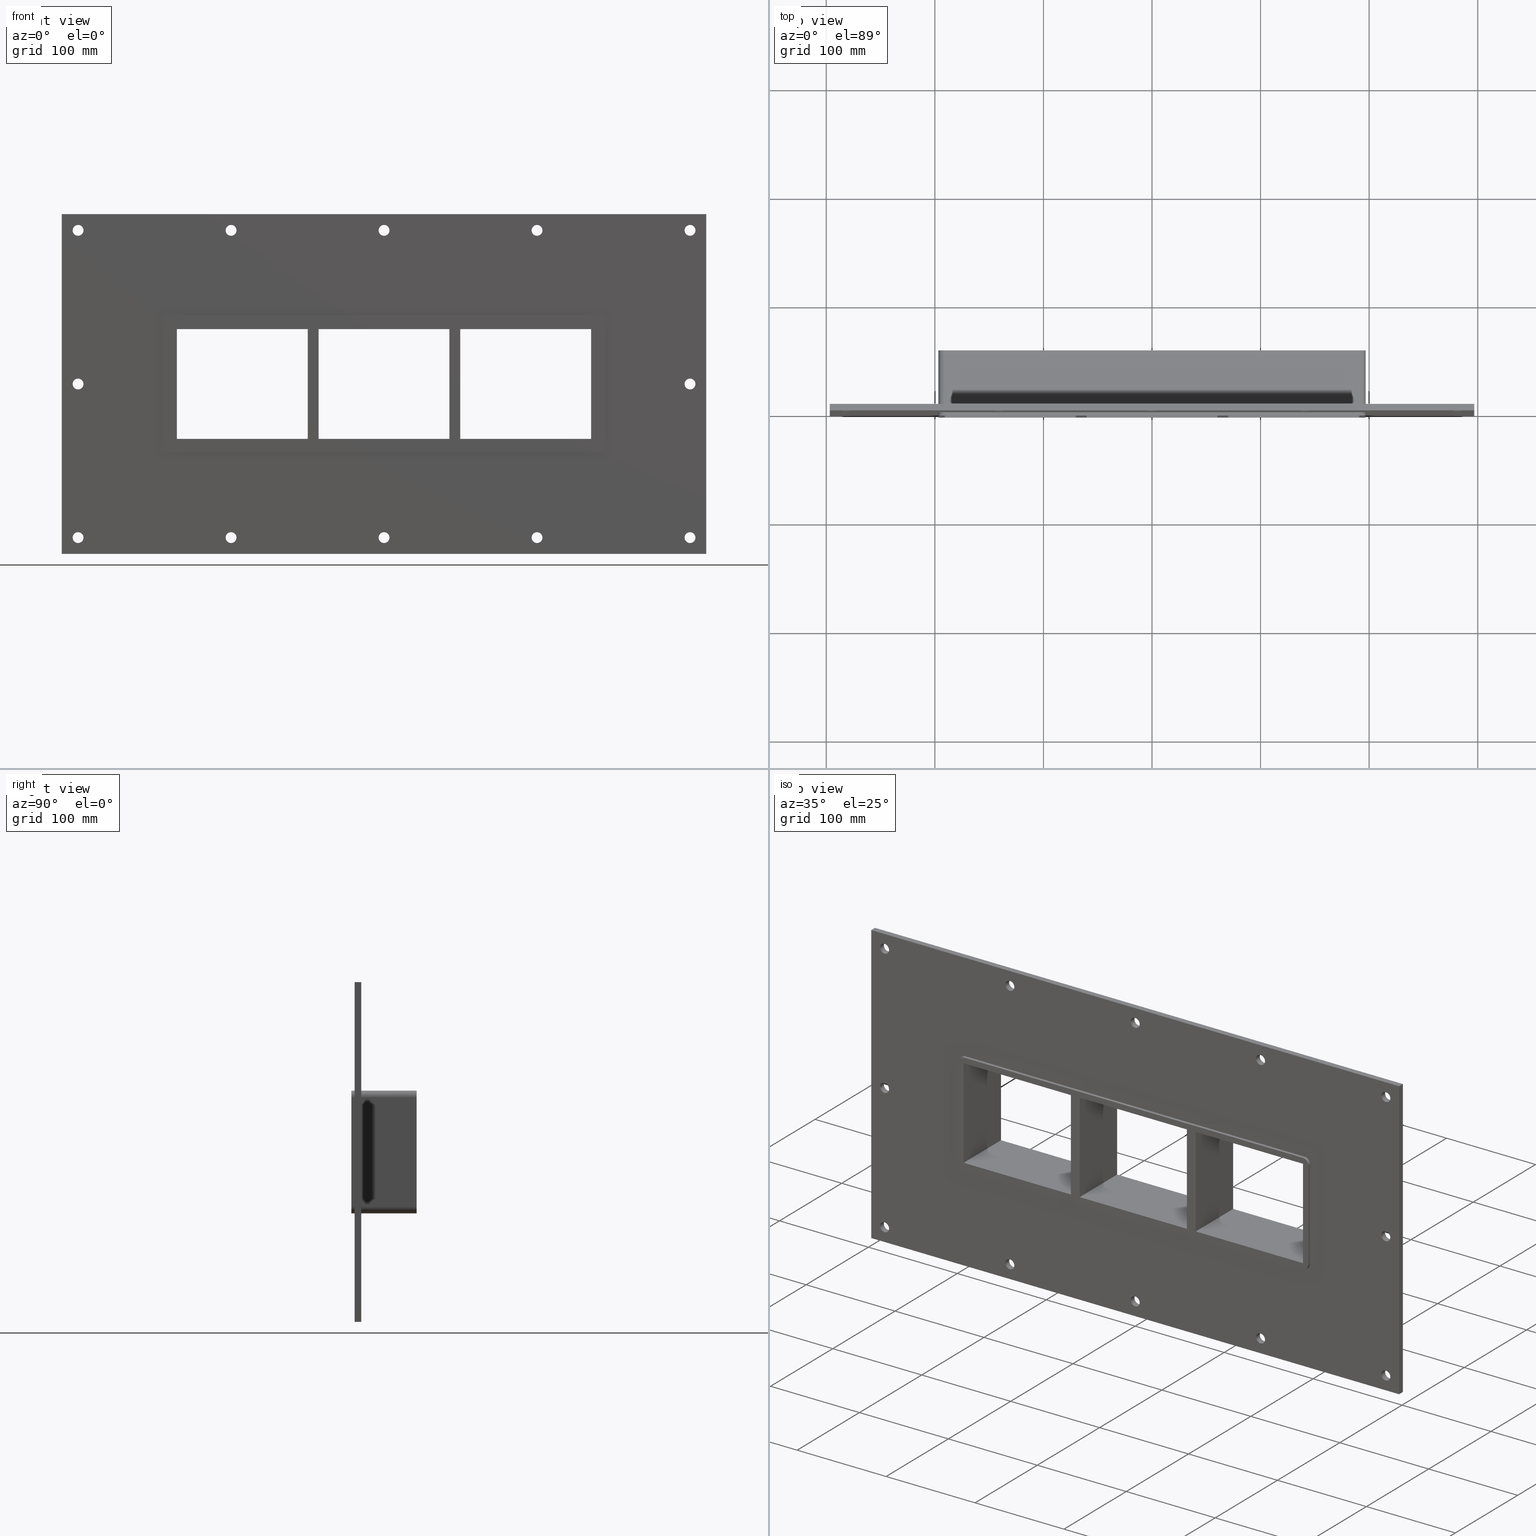
[diagram: canonical four-view strip — front | top / right | iso, engineering-drawing reading convention]
A machine part, canonical four-view strip (front | top / right | iso — engineering-drawing reading convention). The complete STEP part file that produces these views, byte-faithful:
ISO-10303-21;
HEADER;
/****************************************************************
 * Generated by software with PDElib inside                    *
 * PDElib Version v51a, created Wed 11/30/2011                  *
 * ITI Transcendata (http://www.transcendata.com/)              *
 ****************************************************************/
FILE_DESCRIPTION((''),'2;1');
FILE_NAME('C:\\Users\\se-milkar\\Desktop\\RTD Generator\\CreatedFiles\\STEP\\GHFL1002X3.stp','2014-03-10T22:16:14',(''),(''),'Autodesk Inventor 2013','Autodesk Inventor 2013','');
FILE_SCHEMA(('AUTOMOTIVE_DESIGN { 1 0 10303 214 1 1 1 1 }'));
ENDSEC;
DATA;
#5=APPLICATION_CONTEXT('automotive design');
#6=APPLICATION_PROTOCOL_DEFINITION('International Standard','automotive_design',2001,#5);
#7=PRODUCT_CONTEXT('',#5,'mechanical');
#8=PRODUCT('GH FL100','GH FL100',$,(#7));
#9=PRODUCT_RELATED_PRODUCT_CATEGORY('part',$,(#8));
#10=PRODUCT_DEFINITION_FORMATION('',$,#8);
#11=PRODUCT_DEFINITION_CONTEXT('part definition',#5,'design');
#12=PRODUCT_DEFINITION('',$,#10,#11);
#18=(NAMED_UNIT(*)PLANE_ANGLE_UNIT()SI_UNIT($,.RADIAN.));
#19=DIMENSIONAL_EXPONENTS(0.0,0.0,0.0,0.0,0.0,0.0,0.0);
#20=PLANE_ANGLE_MEASURE_WITH_UNIT(PLANE_ANGLE_MEASURE(0.0174532925),#18);
#24=(CONVERSION_BASED_UNIT('DEGREE',#20)NAMED_UNIT(#19)PLANE_ANGLE_UNIT());
#28=(NAMED_UNIT(*)SI_UNIT($,.STERADIAN.)SOLID_ANGLE_UNIT());
#32=(LENGTH_UNIT()NAMED_UNIT(*)SI_UNIT(.MILLI.,.METRE.));
#34=UNCERTAINTY_MEASURE_WITH_UNIT(LENGTH_MEASURE(0.01),#32,'DISTANCE_ACCURACY_VALUE','');
#36=(GEOMETRIC_REPRESENTATION_CONTEXT(3)GLOBAL_UNCERTAINTY_ASSIGNED_CONTEXT((#34))GLOBAL_UNIT_ASSIGNED_CONTEXT((#24,#28,#32))REPRESENTATION_CONTEXT('None','None'));
#37=AXIS2_PLACEMENT_3D('',#38,#39,#40);
#38=CARTESIAN_POINT('',(0.0,0.0,0.0));
#39=DIRECTION('',(0.0,0.0,1.0));
#40=DIRECTION('',(1.0,0.0,0.0));
#41=SHAPE_REPRESENTATION('',(#37),#36);
#42=PRODUCT_DEFINITION_SHAPE('','',#12);
#43=SHAPE_DEFINITION_REPRESENTATION(#42,#41);
#49=(NAMED_UNIT(*)PLANE_ANGLE_UNIT()SI_UNIT($,.RADIAN.));
#50=DIMENSIONAL_EXPONENTS(0.0,0.0,0.0,0.0,0.0,0.0,0.0);
#51=PLANE_ANGLE_MEASURE_WITH_UNIT(PLANE_ANGLE_MEASURE(0.0174532925),#49);
#55=(CONVERSION_BASED_UNIT('DEGREE',#51)NAMED_UNIT(#50)PLANE_ANGLE_UNIT());
#59=(NAMED_UNIT(*)SI_UNIT($,.STERADIAN.)SOLID_ANGLE_UNIT());
#63=(LENGTH_UNIT()NAMED_UNIT(*)SI_UNIT(.MILLI.,.METRE.));
#65=UNCERTAINTY_MEASURE_WITH_UNIT(LENGTH_MEASURE(0.000001),#63,'DISTANCE_ACCURACY_VALUE','');
#67=(GEOMETRIC_REPRESENTATION_CONTEXT(3)GLOBAL_UNCERTAINTY_ASSIGNED_CONTEXT((#65))GLOBAL_UNIT_ASSIGNED_CONTEXT((#55,#59,#63))REPRESENTATION_CONTEXT('','3D'));
#68=CARTESIAN_POINT('',(-281.75000000000006,673.65514174538907,-141.49999999999994));
#69=DIRECTION('',(0.0,-1.0,0.0));
#70=DIRECTION('',(1.0,0.0,0.0));
#71=AXIS2_PLACEMENT_3D('',#68,#69,#70);
#72=CYLINDRICAL_SURFACE('',#71,5.0);
#73=CARTESIAN_POINT('',(-286.75000000000006,5.999999999999943,-141.49999999999994));
#74=VERTEX_POINT('',#73);
#75=CARTESIAN_POINT('',(-281.75000000000006,5.999999999999943,-141.49999999999994));
#76=DIRECTION('',(0.0,-1.0,0.0));
#77=DIRECTION('',(1.0,0.0,0.0));
#78=AXIS2_PLACEMENT_3D('',#75,#76,#77);
#79=CIRCLE('',#78,5.0);
#80=EDGE_CURVE('',#74,#74,#79,.T.);
#81=ORIENTED_EDGE('',*,*,#80,.F.);
#82=EDGE_LOOP('',(#81));
#83=FACE_OUTER_BOUND('',#82,.T.);
#84=CARTESIAN_POINT('',(-276.75000000000006,0.0,-141.49999999999994));
#85=VERTEX_POINT('',#84);
#86=CARTESIAN_POINT('',(-281.75000000000006,0.0,-141.49999999999994));
#87=DIRECTION('',(0.0,1.0,0.0));
#88=DIRECTION('',(1.0,0.0,0.0));
#89=AXIS2_PLACEMENT_3D('',#86,#87,#88);
#90=CIRCLE('',#89,5.0);
#91=EDGE_CURVE('',#85,#85,#90,.T.);
#92=ORIENTED_EDGE('',*,*,#91,.F.);
#93=EDGE_LOOP('',(#92));
#94=FACE_BOUND('',#93,.T.);
#95=ADVANCED_FACE('',(#83,#94),#72,.F.);
#96=CARTESIAN_POINT('',(281.85000000000002,673.65514174538907,5.329071E-014));
#97=DIRECTION('',(0.0,-1.0,0.0));
#98=DIRECTION('',(1.0,0.0,0.0));
#99=AXIS2_PLACEMENT_3D('',#96,#97,#98);
#100=CYLINDRICAL_SURFACE('',#99,5.0);
#101=CARTESIAN_POINT('',(276.85000000000002,5.999999999999943,5.329071E-014));
#102=VERTEX_POINT('',#101);
#103=CARTESIAN_POINT('',(281.85000000000002,5.999999999999943,5.329071E-014));
#104=DIRECTION('',(0.0,-1.0,0.0));
#105=DIRECTION('',(1.0,0.0,0.0));
#106=AXIS2_PLACEMENT_3D('',#103,#104,#105);
#107=CIRCLE('',#106,5.0);
#108=EDGE_CURVE('',#102,#102,#107,.T.);
#109=ORIENTED_EDGE('',*,*,#108,.F.);
#110=EDGE_LOOP('',(#109));
#111=FACE_OUTER_BOUND('',#110,.T.);
#112=CARTESIAN_POINT('',(286.85000000000002,0.0,5.329071E-014));
#113=VERTEX_POINT('',#112);
#114=CARTESIAN_POINT('',(281.85000000000002,0.0,5.329071E-014));
#115=DIRECTION('',(0.0,1.0,0.0));
#116=DIRECTION('',(1.0,0.0,0.0));
#117=AXIS2_PLACEMENT_3D('',#114,#115,#116);
#118=CIRCLE('',#117,5.0);
#119=EDGE_CURVE('',#113,#113,#118,.T.);
#120=ORIENTED_EDGE('',*,*,#119,.F.);
#121=EDGE_LOOP('',(#120));
#122=FACE_BOUND('',#121,.T.);
#123=ADVANCED_FACE('',(#111,#122),#100,.F.);
#124=CARTESIAN_POINT('',(-281.75000000000006,673.65514174538907,5.329071E-014));
#125=DIRECTION('',(0.0,-1.0,0.0));
#126=DIRECTION('',(1.0,0.0,0.0));
#127=AXIS2_PLACEMENT_3D('',#124,#125,#126);
#128=CYLINDRICAL_SURFACE('',#127,5.0);
#129=CARTESIAN_POINT('',(-286.75000000000006,5.999999999999943,5.329071E-014));
#130=VERTEX_POINT('',#129);
#131=CARTESIAN_POINT('',(-281.75000000000006,5.999999999999943,5.329071E-014));
#132=DIRECTION('',(0.0,-1.0,0.0));
#133=DIRECTION('',(1.0,0.0,0.0));
#134=AXIS2_PLACEMENT_3D('',#131,#132,#133);
#135=CIRCLE('',#134,5.0);
#136=EDGE_CURVE('',#130,#130,#135,.T.);
#137=ORIENTED_EDGE('',*,*,#136,.F.);
#138=EDGE_LOOP('',(#137));
#139=FACE_OUTER_BOUND('',#138,.T.);
#140=CARTESIAN_POINT('',(-276.75000000000006,0.0,5.329071E-014));
#141=VERTEX_POINT('',#140);
#142=CARTESIAN_POINT('',(-281.75000000000006,0.0,5.329071E-014));
#143=DIRECTION('',(0.0,1.0,0.0));
#144=DIRECTION('',(1.0,0.0,0.0));
#145=AXIS2_PLACEMENT_3D('',#142,#143,#144);
#146=CIRCLE('',#145,5.0);
#147=EDGE_CURVE('',#141,#141,#146,.T.);
#148=ORIENTED_EDGE('',*,*,#147,.F.);
#149=EDGE_LOOP('',(#148));
#150=FACE_BOUND('',#149,.T.);
#151=ADVANCED_FACE('',(#139,#150),#128,.F.);
#152=CARTESIAN_POINT('',(-140.84999999999999,673.65514174538907,141.50000000000006));
#153=DIRECTION('',(0.0,-1.0,0.0));
#154=DIRECTION('',(1.0,0.0,0.0));
#155=AXIS2_PLACEMENT_3D('',#152,#153,#154);
#156=CYLINDRICAL_SURFACE('',#155,5.0);
#157=CARTESIAN_POINT('',(-145.84999999999999,5.999999999999943,141.50000000000006));
#158=VERTEX_POINT('',#157);
#159=CARTESIAN_POINT('',(-140.84999999999999,5.999999999999943,141.50000000000006));
#160=DIRECTION('',(0.0,-1.0,0.0));
#161=DIRECTION('',(1.0,0.0,0.0));
#162=AXIS2_PLACEMENT_3D('',#159,#160,#161);
#163=CIRCLE('',#162,5.0);
#164=EDGE_CURVE('',#158,#158,#163,.T.);
#165=ORIENTED_EDGE('',*,*,#164,.F.);
#166=EDGE_LOOP('',(#165));
#167=FACE_OUTER_BOUND('',#166,.T.);
#168=CARTESIAN_POINT('',(-135.84999999999999,0.0,141.50000000000006));
#169=VERTEX_POINT('',#168);
#170=CARTESIAN_POINT('',(-140.84999999999999,0.0,141.50000000000006));
#171=DIRECTION('',(0.0,1.0,0.0));
#172=DIRECTION('',(1.0,0.0,0.0));
#173=AXIS2_PLACEMENT_3D('',#170,#171,#172);
#174=CIRCLE('',#173,5.0);
#175=EDGE_CURVE('',#169,#169,#174,.T.);
#176=ORIENTED_EDGE('',*,*,#175,.F.);
#177=EDGE_LOOP('',(#176));
#178=FACE_BOUND('',#177,.T.);
#179=ADVANCED_FACE('',(#167,#178),#156,.F.);
#180=CARTESIAN_POINT('',(-140.84999999999999,673.65514174538907,-141.50000000000003));
#181=DIRECTION('',(0.0,-1.0,0.0));
#182=DIRECTION('',(1.0,0.0,0.0));
#183=AXIS2_PLACEMENT_3D('',#180,#181,#182);
#184=CYLINDRICAL_SURFACE('',#183,5.0);
#185=CARTESIAN_POINT('',(-145.84999999999999,5.999999999999943,-141.50000000000003));
#186=VERTEX_POINT('',#185);
#187=CARTESIAN_POINT('',(-140.84999999999999,5.999999999999943,-141.50000000000003));
#188=DIRECTION('',(0.0,-1.0,0.0));
#189=DIRECTION('',(1.0,0.0,0.0));
#190=AXIS2_PLACEMENT_3D('',#187,#188,#189);
#191=CIRCLE('',#190,5.0);
#192=EDGE_CURVE('',#186,#186,#191,.T.);
#193=ORIENTED_EDGE('',*,*,#192,.F.);
#194=EDGE_LOOP('',(#193));
#195=FACE_OUTER_BOUND('',#194,.T.);
#196=CARTESIAN_POINT('',(-135.84999999999999,0.0,-141.50000000000003));
#197=VERTEX_POINT('',#196);
#198=CARTESIAN_POINT('',(-140.84999999999999,0.0,-141.50000000000003));
#199=DIRECTION('',(0.0,1.0,0.0));
#200=DIRECTION('',(1.0,0.0,0.0));
#201=AXIS2_PLACEMENT_3D('',#198,#199,#200);
#202=CIRCLE('',#201,5.0);
#203=EDGE_CURVE('',#197,#197,#202,.T.);
#204=ORIENTED_EDGE('',*,*,#203,.F.);
#205=EDGE_LOOP('',(#204));
#206=FACE_BOUND('',#205,.T.);
#207=ADVANCED_FACE('',(#195,#206),#184,.F.);
#208=CARTESIAN_POINT('',(0.04999999999999,673.65514174538907,141.50000000000006));
#209=DIRECTION('',(0.0,-1.0,0.0));
#210=DIRECTION('',(1.0,0.0,0.0));
#211=AXIS2_PLACEMENT_3D('',#208,#209,#210);
#212=CYLINDRICAL_SURFACE('',#211,5.0);
#213=CARTESIAN_POINT('',(-4.95000000000001,5.999999999999943,141.50000000000006));
#214=VERTEX_POINT('',#213);
#215=CARTESIAN_POINT('',(0.04999999999999,5.999999999999943,141.50000000000006));
#216=DIRECTION('',(0.0,-1.0,0.0));
#217=DIRECTION('',(1.0,0.0,0.0));
#218=AXIS2_PLACEMENT_3D('',#215,#216,#217);
#219=CIRCLE('',#218,5.0);
#220=EDGE_CURVE('',#214,#214,#219,.T.);
#221=ORIENTED_EDGE('',*,*,#220,.F.);
#222=EDGE_LOOP('',(#221));
#223=FACE_OUTER_BOUND('',#222,.T.);
#224=CARTESIAN_POINT('',(5.04999999999999,0.0,141.50000000000006));
#225=VERTEX_POINT('',#224);
#226=CARTESIAN_POINT('',(0.04999999999999,0.0,141.50000000000006));
#227=DIRECTION('',(0.0,1.0,0.0));
#228=DIRECTION('',(1.0,0.0,0.0));
#229=AXIS2_PLACEMENT_3D('',#226,#227,#228);
#230=CIRCLE('',#229,5.0);
#231=EDGE_CURVE('',#225,#225,#230,.T.);
#232=ORIENTED_EDGE('',*,*,#231,.F.);
#233=EDGE_LOOP('',(#232));
#234=FACE_BOUND('',#233,.T.);
#235=ADVANCED_FACE('',(#223,#234),#212,.F.);
#236=CARTESIAN_POINT('',(0.04999999999999,673.65514174538907,-141.50000000000003));
#237=DIRECTION('',(0.0,-1.0,0.0));
#238=DIRECTION('',(1.0,0.0,0.0));
#239=AXIS2_PLACEMENT_3D('',#236,#237,#238);
#240=CYLINDRICAL_SURFACE('',#239,5.0);
#241=CARTESIAN_POINT('',(-4.95000000000001,5.999999999999943,-141.50000000000003));
#242=VERTEX_POINT('',#241);
#243=CARTESIAN_POINT('',(0.04999999999999,5.999999999999943,-141.50000000000003));
#244=DIRECTION('',(0.0,-1.0,0.0));
#245=DIRECTION('',(1.0,0.0,0.0));
#246=AXIS2_PLACEMENT_3D('',#243,#244,#245);
#247=CIRCLE('',#246,5.0);
#248=EDGE_CURVE('',#242,#242,#247,.T.);
#249=ORIENTED_EDGE('',*,*,#248,.F.);
#250=EDGE_LOOP('',(#249));
#251=FACE_OUTER_BOUND('',#250,.T.);
#252=CARTESIAN_POINT('',(5.04999999999999,0.0,-141.50000000000003));
#253=VERTEX_POINT('',#252);
#254=CARTESIAN_POINT('',(0.04999999999999,0.0,-141.50000000000003));
#255=DIRECTION('',(0.0,1.0,0.0));
#256=DIRECTION('',(1.0,0.0,0.0));
#257=AXIS2_PLACEMENT_3D('',#254,#255,#256);
#258=CIRCLE('',#257,5.0);
#259=EDGE_CURVE('',#253,#253,#258,.T.);
#260=ORIENTED_EDGE('',*,*,#259,.F.);
#261=EDGE_LOOP('',(#260));
#262=FACE_BOUND('',#261,.T.);
#263=ADVANCED_FACE('',(#251,#262),#240,.F.);
#264=CARTESIAN_POINT('',(140.95000000000002,673.65514174538907,141.50000000000006));
#265=DIRECTION('',(0.0,-1.0,0.0));
#266=DIRECTION('',(1.0,0.0,0.0));
#267=AXIS2_PLACEMENT_3D('',#264,#265,#266);
#268=CYLINDRICAL_SURFACE('',#267,5.0);
#269=CARTESIAN_POINT('',(135.95000000000002,5.999999999999943,141.50000000000006));
#270=VERTEX_POINT('',#269);
#271=CARTESIAN_POINT('',(140.95000000000002,5.999999999999943,141.50000000000006));
#272=DIRECTION('',(0.0,-1.0,0.0));
#273=DIRECTION('',(1.0,0.0,0.0));
#274=AXIS2_PLACEMENT_3D('',#271,#272,#273);
#275=CIRCLE('',#274,5.0);
#276=EDGE_CURVE('',#270,#270,#275,.T.);
#277=ORIENTED_EDGE('',*,*,#276,.F.);
#278=EDGE_LOOP('',(#277));
#279=FACE_OUTER_BOUND('',#278,.T.);
#280=CARTESIAN_POINT('',(145.95000000000002,0.0,141.50000000000006));
#281=VERTEX_POINT('',#280);
#282=CARTESIAN_POINT('',(140.95000000000002,0.0,141.50000000000006));
#283=DIRECTION('',(0.0,1.0,0.0));
#284=DIRECTION('',(1.0,0.0,0.0));
#285=AXIS2_PLACEMENT_3D('',#282,#283,#284);
#286=CIRCLE('',#285,5.0);
#287=EDGE_CURVE('',#281,#281,#286,.T.);
#288=ORIENTED_EDGE('',*,*,#287,.F.);
#289=EDGE_LOOP('',(#288));
#290=FACE_BOUND('',#289,.T.);
#291=ADVANCED_FACE('',(#279,#290),#268,.F.);
#292=CARTESIAN_POINT('',(140.95000000000002,673.65514174538907,-141.50000000000003));
#293=DIRECTION('',(0.0,-1.0,0.0));
#294=DIRECTION('',(1.0,0.0,0.0));
#295=AXIS2_PLACEMENT_3D('',#292,#293,#294);
#296=CYLINDRICAL_SURFACE('',#295,5.0);
#297=CARTESIAN_POINT('',(135.95000000000002,5.999999999999943,-141.50000000000003));
#298=VERTEX_POINT('',#297);
#299=CARTESIAN_POINT('',(140.95000000000002,5.999999999999943,-141.50000000000003));
#300=DIRECTION('',(0.0,-1.0,0.0));
#301=DIRECTION('',(1.0,0.0,0.0));
#302=AXIS2_PLACEMENT_3D('',#299,#300,#301);
#303=CIRCLE('',#302,5.0);
#304=EDGE_CURVE('',#298,#298,#303,.T.);
#305=ORIENTED_EDGE('',*,*,#304,.F.);
#306=EDGE_LOOP('',(#305));
#307=FACE_OUTER_BOUND('',#306,.T.);
#308=CARTESIAN_POINT('',(145.95000000000002,0.0,-141.50000000000003));
#309=VERTEX_POINT('',#308);
#310=CARTESIAN_POINT('',(140.95000000000002,0.0,-141.50000000000003));
#311=DIRECTION('',(0.0,1.0,0.0));
#312=DIRECTION('',(1.0,0.0,0.0));
#313=AXIS2_PLACEMENT_3D('',#310,#311,#312);
#314=CIRCLE('',#313,5.0);
#315=EDGE_CURVE('',#309,#309,#314,.T.);
#316=ORIENTED_EDGE('',*,*,#315,.F.);
#317=EDGE_LOOP('',(#316));
#318=FACE_BOUND('',#317,.T.);
#319=ADVANCED_FACE('',(#307,#318),#296,.F.);
#320=CARTESIAN_POINT('',(281.85000000000002,673.65514174538907,-141.50000000000003));
#321=DIRECTION('',(0.0,-1.0,0.0));
#322=DIRECTION('',(1.0,0.0,0.0));
#323=AXIS2_PLACEMENT_3D('',#320,#321,#322);
#324=CYLINDRICAL_SURFACE('',#323,5.0);
#325=CARTESIAN_POINT('',(276.85000000000002,5.999999999999943,-141.50000000000003));
#326=VERTEX_POINT('',#325);
#327=CARTESIAN_POINT('',(281.85000000000002,5.999999999999943,-141.50000000000003));
#328=DIRECTION('',(0.0,-1.0,0.0));
#329=DIRECTION('',(1.0,0.0,0.0));
#330=AXIS2_PLACEMENT_3D('',#327,#328,#329);
#331=CIRCLE('',#330,5.0);
#332=EDGE_CURVE('',#326,#326,#331,.T.);
#333=ORIENTED_EDGE('',*,*,#332,.F.);
#334=EDGE_LOOP('',(#333));
#335=FACE_OUTER_BOUND('',#334,.T.);
#336=CARTESIAN_POINT('',(286.85000000000002,0.0,-141.50000000000003));
#337=VERTEX_POINT('',#336);
#338=CARTESIAN_POINT('',(281.85000000000002,0.0,-141.50000000000003));
#339=DIRECTION('',(0.0,1.0,0.0));
#340=DIRECTION('',(1.0,0.0,0.0));
#341=AXIS2_PLACEMENT_3D('',#338,#339,#340);
#342=CIRCLE('',#341,5.0);
#343=EDGE_CURVE('',#337,#337,#342,.T.);
#344=ORIENTED_EDGE('',*,*,#343,.F.);
#345=EDGE_LOOP('',(#344));
#346=FACE_BOUND('',#345,.T.);
#347=ADVANCED_FACE('',(#335,#346),#324,.F.);
#348=CARTESIAN_POINT('',(-281.75000000000006,673.65514174538907,141.50000000000006));
#349=DIRECTION('',(0.0,-1.0,0.0));
#350=DIRECTION('',(1.0,0.0,0.0));
#351=AXIS2_PLACEMENT_3D('',#348,#349,#350);
#352=CYLINDRICAL_SURFACE('',#351,5.0);
#353=CARTESIAN_POINT('',(-286.75000000000006,5.999999999999943,141.50000000000006));
#354=VERTEX_POINT('',#353);
#355=CARTESIAN_POINT('',(-281.75000000000006,5.999999999999943,141.50000000000006));
#356=DIRECTION('',(0.0,-1.0,0.0));
#357=DIRECTION('',(1.0,0.0,0.0));
#358=AXIS2_PLACEMENT_3D('',#355,#356,#357);
#359=CIRCLE('',#358,5.0);
#360=EDGE_CURVE('',#354,#354,#359,.T.);
#361=ORIENTED_EDGE('',*,*,#360,.F.);
#362=EDGE_LOOP('',(#361));
#363=FACE_OUTER_BOUND('',#362,.T.);
#364=CARTESIAN_POINT('',(-276.75000000000006,0.0,141.50000000000006));
#365=VERTEX_POINT('',#364);
#366=CARTESIAN_POINT('',(-281.75000000000006,0.0,141.50000000000006));
#367=DIRECTION('',(0.0,1.0,0.0));
#368=DIRECTION('',(1.0,0.0,0.0));
#369=AXIS2_PLACEMENT_3D('',#366,#367,#368);
#370=CIRCLE('',#369,5.0);
#371=EDGE_CURVE('',#365,#365,#370,.T.);
#372=ORIENTED_EDGE('',*,*,#371,.F.);
#373=EDGE_LOOP('',(#372));
#374=FACE_BOUND('',#373,.T.);
#375=ADVANCED_FACE('',(#363,#374),#352,.F.);
#376=CARTESIAN_POINT('',(281.85000000000002,673.65514174538907,141.50000000000006));
#377=DIRECTION('',(0.0,-1.0,0.0));
#378=DIRECTION('',(1.0,0.0,0.0));
#379=AXIS2_PLACEMENT_3D('',#376,#377,#378);
#380=CYLINDRICAL_SURFACE('',#379,5.0);
#381=CARTESIAN_POINT('',(276.85000000000002,5.999999999999943,141.50000000000006));
#382=VERTEX_POINT('',#381);
#383=CARTESIAN_POINT('',(281.85000000000002,5.999999999999943,141.50000000000006));
#384=DIRECTION('',(0.0,-1.0,0.0));
#385=DIRECTION('',(1.0,0.0,0.0));
#386=AXIS2_PLACEMENT_3D('',#383,#384,#385);
#387=CIRCLE('',#386,5.0);
#388=EDGE_CURVE('',#382,#382,#387,.T.);
#389=ORIENTED_EDGE('',*,*,#388,.F.);
#390=EDGE_LOOP('',(#389));
#391=FACE_OUTER_BOUND('',#390,.T.);
#392=CARTESIAN_POINT('',(286.85000000000002,0.0,141.50000000000006));
#393=VERTEX_POINT('',#392);
#394=CARTESIAN_POINT('',(281.85000000000002,0.0,141.50000000000006));
#395=DIRECTION('',(0.0,1.0,0.0));
#396=DIRECTION('',(1.0,0.0,0.0));
#397=AXIS2_PLACEMENT_3D('',#394,#395,#396);
#398=CIRCLE('',#397,5.0);
#399=EDGE_CURVE('',#393,#393,#398,.T.);
#400=ORIENTED_EDGE('',*,*,#399,.F.);
#401=EDGE_LOOP('',(#400));
#402=FACE_BOUND('',#401,.T.);
#403=ADVANCED_FACE('',(#391,#402),#380,.F.);
#404=CARTESIAN_POINT('',(60.249999999998707,-3.0,-50.499999999999986));
#405=DIRECTION('',(-1.0,0.0,0.0));
#406=DIRECTION('',(0.0,0.0,1.0));
#407=AXIS2_PLACEMENT_3D('',#404,#405,#406);
#408=PLANE('',#407);
#409=CARTESIAN_POINT('',(60.249999999998707,-3.0,-50.499999999999986));
#410=VERTEX_POINT('',#409);
#411=CARTESIAN_POINT('',(60.249999999998671,-3.0,50.500000000000007));
#412=VERTEX_POINT('',#411);
#413=CARTESIAN_POINT('',(60.249999999998707,-3.0,-50.499999999999986));
#414=DIRECTION('',(0.0,0.0,1.0));
#415=VECTOR('',#414,101.0);
#416=LINE('',#413,#415);
#417=EDGE_CURVE('',#410,#412,#416,.T.);
#418=ORIENTED_EDGE('',*,*,#417,.T.);
#419=CARTESIAN_POINT('',(60.249999999998671,57.0,50.500000000000007));
#420=VERTEX_POINT('',#419);
#421=CARTESIAN_POINT('',(60.249999999998671,57.000000000000007,50.500000000000007));
#422=DIRECTION('',(0.0,-1.0,0.0));
#423=VECTOR('',#422,60.000000000000007);
#424=LINE('',#421,#423);
#425=EDGE_CURVE('',#420,#412,#424,.T.);
#426=ORIENTED_EDGE('',*,*,#425,.F.);
#427=CARTESIAN_POINT('',(60.249999999998707,57.0,-50.499999999999986));
#428=VERTEX_POINT('',#427);
#429=CARTESIAN_POINT('',(60.249999999998707,57.0,-50.499999999999986));
#430=DIRECTION('',(0.0,0.0,1.0));
#431=VECTOR('',#430,101.0);
#432=LINE('',#429,#431);
#433=EDGE_CURVE('',#428,#420,#432,.T.);
#434=ORIENTED_EDGE('',*,*,#433,.F.);
#435=CARTESIAN_POINT('',(60.249999999998707,-3.0,-50.499999999999986));
#436=DIRECTION('',(0.0,1.0,0.0));
#437=VECTOR('',#436,60.000000000000007);
#438=LINE('',#435,#437);
#439=EDGE_CURVE('',#410,#428,#438,.T.);
#440=ORIENTED_EDGE('',*,*,#439,.F.);
#441=EDGE_LOOP('',(#418,#426,#434,#440));
#442=FACE_OUTER_BOUND('',#441,.T.);
#443=ADVANCED_FACE('',(#442),#408,.T.);
#444=CARTESIAN_POINT('',(70.250000000003638,-3.0,50.500000000000007));
#445=DIRECTION('',(1.0,0.0,0.0));
#446=DIRECTION('',(0.0,0.0,-1.0));
#447=AXIS2_PLACEMENT_3D('',#444,#445,#446);
#448=PLANE('',#447);
#449=CARTESIAN_POINT('',(70.250000000003638,-3.0,50.500000000000007));
#450=VERTEX_POINT('',#449);
#451=CARTESIAN_POINT('',(70.250000000003638,-3.0,-50.499999999984233));
#452=VERTEX_POINT('',#451);
#453=CARTESIAN_POINT('',(70.250000000003638,-3.0,50.500000000000007));
#454=DIRECTION('',(0.0,0.0,-1.0));
#455=VECTOR('',#454,100.99999999998424);
#456=LINE('',#453,#455);
#457=EDGE_CURVE('',#450,#452,#456,.T.);
#458=ORIENTED_EDGE('',*,*,#457,.T.);
#459=CARTESIAN_POINT('',(70.250000000003638,57.0,-50.499999999984233));
#460=VERTEX_POINT('',#459);
#461=CARTESIAN_POINT('',(70.250000000003638,57.000000000000007,-50.499999999999986));
#462=DIRECTION('',(0.0,-1.0,0.0));
#463=VECTOR('',#462,60.000000000000007);
#464=LINE('',#461,#463);
#465=EDGE_CURVE('',#460,#452,#464,.T.);
#466=ORIENTED_EDGE('',*,*,#465,.F.);
#467=CARTESIAN_POINT('',(70.250000000003638,57.0,50.500000000000007));
#468=VERTEX_POINT('',#467);
#469=CARTESIAN_POINT('',(70.250000000003638,57.0,50.500000000000007));
#470=DIRECTION('',(0.0,0.0,-1.0));
#471=VECTOR('',#470,100.99999999998424);
#472=LINE('',#469,#471);
#473=EDGE_CURVE('',#468,#460,#472,.T.);
#474=ORIENTED_EDGE('',*,*,#473,.F.);
#475=CARTESIAN_POINT('',(70.250000000003638,-3.0,50.500000000000007));
#476=DIRECTION('',(0.0,1.0,0.0));
#477=VECTOR('',#476,60.000000000000007);
#478=LINE('',#475,#477);
#479=EDGE_CURVE('',#450,#468,#478,.T.);
#480=ORIENTED_EDGE('',*,*,#479,.F.);
#481=EDGE_LOOP('',(#458,#466,#474,#480));
#482=FACE_OUTER_BOUND('',#481,.T.);
#483=ADVANCED_FACE('',(#482),#448,.T.);
#484=CARTESIAN_POINT('',(190.75000000000006,0.0,-50.499999999999986));
#485=DIRECTION('',(0.0,0.0,-1.0));
#486=DIRECTION('',(-1.0,0.0,0.0));
#487=AXIS2_PLACEMENT_3D('',#484,#485,#486);
#488=PLANE('',#487);
#489=ORIENTED_EDGE('',*,*,#439,.T.);
#490=CARTESIAN_POINT('',(-60.249999999996362,57.0,-50.499999999984233));
#491=VERTEX_POINT('',#490);
#492=CARTESIAN_POINT('',(-60.249999999996362,57.0,-50.499999999999986));
#493=DIRECTION('',(1.0,0.0,0.0));
#494=VECTOR('',#493,120.49999999999507);
#495=LINE('',#492,#494);
#496=EDGE_CURVE('',#491,#428,#495,.T.);
#497=ORIENTED_EDGE('',*,*,#496,.F.);
#498=CARTESIAN_POINT('',(-60.249999999996362,-3.0,-50.499999999984233));
#499=VERTEX_POINT('',#498);
#500=CARTESIAN_POINT('',(-60.249999999996362,57.000000000000007,-50.499999999999986));
#501=DIRECTION('',(0.0,-1.0,0.0));
#502=VECTOR('',#501,60.000000000000007);
#503=LINE('',#500,#502);
#504=EDGE_CURVE('',#491,#499,#503,.T.);
#505=ORIENTED_EDGE('',*,*,#504,.T.);
#506=CARTESIAN_POINT('',(60.249999999998707,-3.0,-50.499999999999986));
#507=DIRECTION('',(-1.0,0.0,0.0));
#508=VECTOR('',#507,120.49999999999507);
#509=LINE('',#506,#508);
#510=EDGE_CURVE('',#410,#499,#509,.T.);
#511=ORIENTED_EDGE('',*,*,#510,.F.);
#512=EDGE_LOOP('',(#489,#497,#505,#511));
#513=FACE_OUTER_BOUND('',#512,.T.);
#514=ADVANCED_FACE('',(#513),#488,.F.);
#515=CARTESIAN_POINT('',(190.75000000000006,0.0,-50.499999999999986));
#516=DIRECTION('',(0.0,0.0,-1.0));
#517=DIRECTION('',(-1.0,0.0,0.0));
#518=AXIS2_PLACEMENT_3D('',#515,#516,#517);
#519=PLANE('',#518);
#520=ORIENTED_EDGE('',*,*,#465,.T.);
#521=CARTESIAN_POINT('',(190.75000000000006,-3.0,-50.499999999999986));
#522=VERTEX_POINT('',#521);
#523=CARTESIAN_POINT('',(190.75000000000006,-3.0,-50.499999999999986));
#524=DIRECTION('',(-1.0,0.0,0.0));
#525=VECTOR('',#524,120.49999999999642);
#526=LINE('',#523,#525);
#527=EDGE_CURVE('',#522,#452,#526,.T.);
#528=ORIENTED_EDGE('',*,*,#527,.F.);
#529=CARTESIAN_POINT('',(190.75000000000006,57.0,-50.499999999999986));
#530=VERTEX_POINT('',#529);
#531=CARTESIAN_POINT('',(190.75000000000006,56.999999999999993,-50.499999999999986));
#532=DIRECTION('',(0.0,-1.0,0.0));
#533=VECTOR('',#532,59.999999999999993);
#534=LINE('',#531,#533);
#535=EDGE_CURVE('',#530,#522,#534,.T.);
#536=ORIENTED_EDGE('',*,*,#535,.F.);
#537=CARTESIAN_POINT('',(70.250000000003638,57.0,-50.499999999999986));
#538=DIRECTION('',(1.0,0.0,0.0));
#539=VECTOR('',#538,120.49999999999642);
#540=LINE('',#537,#539);
#541=EDGE_CURVE('',#460,#530,#540,.T.);
#542=ORIENTED_EDGE('',*,*,#541,.F.);
#543=EDGE_LOOP('',(#520,#528,#536,#542));
#544=FACE_OUTER_BOUND('',#543,.T.);
#545=ADVANCED_FACE('',(#544),#519,.F.);
#546=CARTESIAN_POINT('',(-190.75000000000003,0.0,50.500000000000007));
#547=DIRECTION('',(0.0,0.0,1.0));
#548=DIRECTION('',(1.0,0.0,0.0));
#549=AXIS2_PLACEMENT_3D('',#546,#547,#548);
#550=PLANE('',#549);
#551=ORIENTED_EDGE('',*,*,#479,.T.);
#552=CARTESIAN_POINT('',(190.75000000000006,57.0,50.500000000000007));
#553=VERTEX_POINT('',#552);
#554=CARTESIAN_POINT('',(190.75000000000006,57.0,50.500000000000007));
#555=DIRECTION('',(-1.0,0.0,0.0));
#556=VECTOR('',#555,120.4999999999964);
#557=LINE('',#554,#556);
#558=EDGE_CURVE('',#553,#468,#557,.T.);
#559=ORIENTED_EDGE('',*,*,#558,.F.);
#560=CARTESIAN_POINT('',(190.75000000000006,-3.0,50.500000000000007));
#561=VERTEX_POINT('',#560);
#562=CARTESIAN_POINT('',(190.75000000000006,-3.0,50.500000000000007));
#563=DIRECTION('',(0.0,1.0,0.0));
#564=VECTOR('',#563,60.0);
#565=LINE('',#562,#564);
#566=EDGE_CURVE('',#561,#553,#565,.T.);
#567=ORIENTED_EDGE('',*,*,#566,.F.);
#568=CARTESIAN_POINT('',(70.250000000003652,-3.0,50.500000000000007));
#569=DIRECTION('',(1.0,0.0,0.0));
#570=VECTOR('',#569,120.4999999999964);
#571=LINE('',#568,#570);
#572=EDGE_CURVE('',#450,#561,#571,.T.);
#573=ORIENTED_EDGE('',*,*,#572,.F.);
#574=EDGE_LOOP('',(#551,#559,#567,#573));
#575=FACE_OUTER_BOUND('',#574,.T.);
#576=ADVANCED_FACE('',(#575),#550,.F.);
#577=CARTESIAN_POINT('',(-190.75000000000003,0.0,50.500000000000007));
#578=DIRECTION('',(0.0,0.0,1.0));
#579=DIRECTION('',(1.0,0.0,0.0));
#580=AXIS2_PLACEMENT_3D('',#577,#578,#579);
#581=PLANE('',#580);
#582=ORIENTED_EDGE('',*,*,#425,.T.);
#583=CARTESIAN_POINT('',(-60.249999999996362,-3.0,50.500000000000007));
#584=VERTEX_POINT('',#583);
#585=CARTESIAN_POINT('',(-60.249999999996362,-3.0,50.500000000000007));
#586=DIRECTION('',(1.0,0.0,0.0));
#587=VECTOR('',#586,120.49999999999504);
#588=LINE('',#585,#587);
#589=EDGE_CURVE('',#584,#412,#588,.T.);
#590=ORIENTED_EDGE('',*,*,#589,.F.);
#591=CARTESIAN_POINT('',(-60.249999999996362,57.0,50.500000000000007));
#592=VERTEX_POINT('',#591);
#593=CARTESIAN_POINT('',(-60.249999999996362,-3.0,50.500000000000007));
#594=DIRECTION('',(0.0,1.0,0.0));
#595=VECTOR('',#594,60.000000000000007);
#596=LINE('',#593,#595);
#597=EDGE_CURVE('',#584,#592,#596,.T.);
#598=ORIENTED_EDGE('',*,*,#597,.T.);
#599=CARTESIAN_POINT('',(60.249999999998678,57.0,50.500000000000007));
#600=DIRECTION('',(-1.0,0.0,0.0));
#601=VECTOR('',#600,120.49999999999504);
#602=LINE('',#599,#601);
#603=EDGE_CURVE('',#420,#592,#602,.T.);
#604=ORIENTED_EDGE('',*,*,#603,.F.);
#605=EDGE_LOOP('',(#582,#590,#598,#604));
#606=FACE_OUTER_BOUND('',#605,.T.);
#607=ADVANCED_FACE('',(#606),#581,.F.);
#608=CARTESIAN_POINT('',(-70.250000000001307,-3.0,-50.499999999999986));
#609=DIRECTION('',(-1.0,0.0,0.0));
#610=DIRECTION('',(0.0,0.0,1.0));
#611=AXIS2_PLACEMENT_3D('',#608,#609,#610);
#612=PLANE('',#611);
#613=CARTESIAN_POINT('',(-70.250000000001307,-3.0,-50.499999999999986));
#614=VERTEX_POINT('',#613);
#615=CARTESIAN_POINT('',(-70.250000000001336,-3.0,50.500000000000007));
#616=VERTEX_POINT('',#615);
#617=CARTESIAN_POINT('',(-70.250000000001307,-3.0,-50.499999999999986));
#618=DIRECTION('',(0.0,0.0,1.0));
#619=VECTOR('',#618,101.0);
#620=LINE('',#617,#619);
#621=EDGE_CURVE('',#614,#616,#620,.T.);
#622=ORIENTED_EDGE('',*,*,#621,.T.);
#623=CARTESIAN_POINT('',(-70.250000000001336,57.0,50.500000000000007));
#624=VERTEX_POINT('',#623);
#625=CARTESIAN_POINT('',(-70.250000000001336,57.000000000000007,50.500000000000007));
#626=DIRECTION('',(0.0,-1.0,0.0));
#627=VECTOR('',#626,60.000000000000007);
#628=LINE('',#625,#627);
#629=EDGE_CURVE('',#624,#616,#628,.T.);
#630=ORIENTED_EDGE('',*,*,#629,.F.);
#631=CARTESIAN_POINT('',(-70.250000000001307,57.0,-50.499999999999986));
#632=VERTEX_POINT('',#631);
#633=CARTESIAN_POINT('',(-70.250000000001307,57.0,-50.499999999999986));
#634=DIRECTION('',(0.0,0.0,1.0));
#635=VECTOR('',#634,101.0);
#636=LINE('',#633,#635);
#637=EDGE_CURVE('',#632,#624,#636,.T.);
#638=ORIENTED_EDGE('',*,*,#637,.F.);
#639=CARTESIAN_POINT('',(-70.250000000001307,-3.0,-50.499999999999986));
#640=DIRECTION('',(0.0,1.0,0.0));
#641=VECTOR('',#640,60.000000000000007);
#642=LINE('',#639,#641);
#643=EDGE_CURVE('',#614,#632,#642,.T.);
#644=ORIENTED_EDGE('',*,*,#643,.F.);
#645=EDGE_LOOP('',(#622,#630,#638,#644));
#646=FACE_OUTER_BOUND('',#645,.T.);
#647=ADVANCED_FACE('',(#646),#612,.T.);
#648=CARTESIAN_POINT('',(-60.249999999996362,-3.0,50.500000000000007));
#649=DIRECTION('',(1.0,0.0,0.0));
#650=DIRECTION('',(0.0,0.0,-1.0));
#651=AXIS2_PLACEMENT_3D('',#648,#649,#650);
#652=PLANE('',#651);
#653=CARTESIAN_POINT('',(-60.249999999996362,-3.0,50.500000000000007));
#654=DIRECTION('',(0.0,0.0,-1.0));
#655=VECTOR('',#654,100.99999999998424);
#656=LINE('',#653,#655);
#657=EDGE_CURVE('',#584,#499,#656,.T.);
#658=ORIENTED_EDGE('',*,*,#657,.T.);
#659=ORIENTED_EDGE('',*,*,#504,.F.);
#660=CARTESIAN_POINT('',(-60.249999999996362,57.0,50.500000000000007));
#661=DIRECTION('',(0.0,0.0,-1.0));
#662=VECTOR('',#661,100.99999999998424);
#663=LINE('',#660,#662);
#664=EDGE_CURVE('',#592,#491,#663,.T.);
#665=ORIENTED_EDGE('',*,*,#664,.F.);
#666=ORIENTED_EDGE('',*,*,#597,.F.);
#667=EDGE_LOOP('',(#658,#659,#665,#666));
#668=FACE_OUTER_BOUND('',#667,.T.);
#669=ADVANCED_FACE('',(#668),#652,.T.);
#670=CARTESIAN_POINT('',(190.75000000000006,0.0,-50.499999999999986));
#671=DIRECTION('',(0.0,0.0,-1.0));
#672=DIRECTION('',(-1.0,0.0,0.0));
#673=AXIS2_PLACEMENT_3D('',#670,#671,#672);
#674=PLANE('',#673);
#675=ORIENTED_EDGE('',*,*,#643,.T.);
#676=CARTESIAN_POINT('',(-190.75,57.0,-50.499999999999986));
#677=VERTEX_POINT('',#676);
#678=CARTESIAN_POINT('',(-190.75000000000003,57.0,-50.499999999999986));
#679=DIRECTION('',(1.0,0.0,0.0));
#680=VECTOR('',#679,120.49999999999869);
#681=LINE('',#678,#680);
#682=EDGE_CURVE('',#677,#632,#681,.T.);
#683=ORIENTED_EDGE('',*,*,#682,.F.);
#684=CARTESIAN_POINT('',(-190.75,-3.0,-50.499999999999986));
#685=VERTEX_POINT('',#684);
#686=CARTESIAN_POINT('',(-190.75000000000003,-3.0,-50.499999999999986));
#687=DIRECTION('',(0.0,1.0,0.0));
#688=VECTOR('',#687,60.0);
#689=LINE('',#686,#688);
#690=EDGE_CURVE('',#685,#677,#689,.T.);
#691=ORIENTED_EDGE('',*,*,#690,.F.);
#692=CARTESIAN_POINT('',(-70.250000000001336,-3.0,-50.499999999999986));
#693=DIRECTION('',(-1.0,0.0,0.0));
#694=VECTOR('',#693,120.49999999999869);
#695=LINE('',#692,#694);
#696=EDGE_CURVE('',#614,#685,#695,.T.);
#697=ORIENTED_EDGE('',*,*,#696,.F.);
#698=EDGE_LOOP('',(#675,#683,#691,#697));
#699=FACE_OUTER_BOUND('',#698,.T.);
#700=ADVANCED_FACE('',(#699),#674,.F.);
#701=CARTESIAN_POINT('',(-190.75000000000003,0.0,50.500000000000007));
#702=DIRECTION('',(0.0,0.0,1.0));
#703=DIRECTION('',(1.0,0.0,0.0));
#704=AXIS2_PLACEMENT_3D('',#701,#702,#703);
#705=PLANE('',#704);
#706=ORIENTED_EDGE('',*,*,#629,.T.);
#707=CARTESIAN_POINT('',(-190.75,-3.0,50.500000000000007));
#708=VERTEX_POINT('',#707);
#709=CARTESIAN_POINT('',(-190.75,-3.0,50.500000000000007));
#710=DIRECTION('',(1.0,0.0,0.0));
#711=VECTOR('',#710,120.49999999999866);
#712=LINE('',#709,#711);
#713=EDGE_CURVE('',#708,#616,#712,.T.);
#714=ORIENTED_EDGE('',*,*,#713,.F.);
#715=CARTESIAN_POINT('',(-190.75,57.0,50.500000000000007));
#716=VERTEX_POINT('',#715);
#717=CARTESIAN_POINT('',(-190.75000000000003,-3.0,50.500000000000007));
#718=DIRECTION('',(0.0,1.0,0.0));
#719=VECTOR('',#718,60.0);
#720=LINE('',#717,#719);
#721=EDGE_CURVE('',#708,#716,#720,.T.);
#722=ORIENTED_EDGE('',*,*,#721,.T.);
#723=CARTESIAN_POINT('',(-70.250000000001336,57.0,50.500000000000007));
#724=DIRECTION('',(-1.0,0.0,0.0));
#725=VECTOR('',#724,120.49999999999866);
#726=LINE('',#723,#725);
#727=EDGE_CURVE('',#624,#716,#726,.T.);
#728=ORIENTED_EDGE('',*,*,#727,.F.);
#729=EDGE_LOOP('',(#706,#714,#722,#728));
#730=FACE_OUTER_BOUND('',#729,.T.);
#731=ADVANCED_FACE('',(#730),#705,.F.);
#732=CARTESIAN_POINT('',(1.881194E-014,6.000000000000001,-9.405971E-015));
#733=DIRECTION('',(0.0,1.0,0.0));
#734=DIRECTION('',(0.0,0.0,1.0));
#735=AXIS2_PLACEMENT_3D('',#732,#733,#734);
#736=PLANE('',#735);
#737=CARTESIAN_POINT('',(-296.75,6.000000000000001,156.5));
#738=VERTEX_POINT('',#737);
#739=CARTESIAN_POINT('',(296.75000000000006,6.000000000000001,156.5));
#740=VERTEX_POINT('',#739);
#741=CARTESIAN_POINT('',(-296.75,6.000000000000001,156.5));
#742=DIRECTION('',(1.0,0.0,0.0));
#743=VECTOR('',#742,593.50000000000011);
#744=LINE('',#741,#743);
#745=EDGE_CURVE('',#738,#740,#744,.T.);
#746=ORIENTED_EDGE('',*,*,#745,.T.);
#747=CARTESIAN_POINT('',(296.75000000000006,6.000000000000001,-156.50000000000003));
#748=VERTEX_POINT('',#747);
#749=CARTESIAN_POINT('',(296.75000000000006,6.000000000000001,156.5));
#750=DIRECTION('',(0.0,0.0,-1.0));
#751=VECTOR('',#750,313.00000000000006);
#752=LINE('',#749,#751);
#753=EDGE_CURVE('',#740,#748,#752,.T.);
#754=ORIENTED_EDGE('',*,*,#753,.T.);
#755=CARTESIAN_POINT('',(-296.75,6.000000000000001,-156.50000000000003));
#756=VERTEX_POINT('',#755);
#757=CARTESIAN_POINT('',(296.75000000000006,6.000000000000001,-156.50000000000003));
#758=DIRECTION('',(-1.0,0.0,0.0));
#759=VECTOR('',#758,593.50000000000011);
#760=LINE('',#757,#759);
#761=EDGE_CURVE('',#748,#756,#760,.T.);
#762=ORIENTED_EDGE('',*,*,#761,.T.);
#763=CARTESIAN_POINT('',(-296.75,6.000000000000001,-156.50000000000003));
#764=DIRECTION('',(0.0,0.0,1.0));
#765=VECTOR('',#764,313.00000000000006);
#766=LINE('',#763,#765);
#767=EDGE_CURVE('',#756,#738,#766,.T.);
#768=ORIENTED_EDGE('',*,*,#767,.T.);
#769=EDGE_LOOP('',(#746,#754,#762,#768));
#770=FACE_OUTER_BOUND('',#769,.T.);
#771=ORIENTED_EDGE('',*,*,#80,.T.);
#772=EDGE_LOOP('',(#771));
#773=FACE_BOUND('',#772,.T.);
#774=ORIENTED_EDGE('',*,*,#108,.T.);
#775=EDGE_LOOP('',(#774));
#776=FACE_BOUND('',#775,.T.);
#777=ORIENTED_EDGE('',*,*,#136,.T.);
#778=EDGE_LOOP('',(#777));
#779=FACE_BOUND('',#778,.T.);
#780=ORIENTED_EDGE('',*,*,#164,.T.);
#781=EDGE_LOOP('',(#780));
#782=FACE_BOUND('',#781,.T.);
#783=ORIENTED_EDGE('',*,*,#192,.T.);
#784=EDGE_LOOP('',(#783));
#785=FACE_BOUND('',#784,.T.);
#786=ORIENTED_EDGE('',*,*,#220,.T.);
#787=EDGE_LOOP('',(#786));
#788=FACE_BOUND('',#787,.T.);
#789=ORIENTED_EDGE('',*,*,#248,.T.);
#790=EDGE_LOOP('',(#789));
#791=FACE_BOUND('',#790,.T.);
#792=ORIENTED_EDGE('',*,*,#276,.T.);
#793=EDGE_LOOP('',(#792));
#794=FACE_BOUND('',#793,.T.);
#795=ORIENTED_EDGE('',*,*,#304,.T.);
#796=EDGE_LOOP('',(#795));
#797=FACE_BOUND('',#796,.T.);
#798=ORIENTED_EDGE('',*,*,#332,.T.);
#799=EDGE_LOOP('',(#798));
#800=FACE_BOUND('',#799,.T.);
#801=ORIENTED_EDGE('',*,*,#360,.T.);
#802=EDGE_LOOP('',(#801));
#803=FACE_BOUND('',#802,.T.);
#804=ORIENTED_EDGE('',*,*,#388,.T.);
#805=EDGE_LOOP('',(#804));
#806=FACE_BOUND('',#805,.T.);
#807=CARTESIAN_POINT('',(-190.75000000000003,6.000000000000001,-56.5));
#808=VERTEX_POINT('',#807);
#809=CARTESIAN_POINT('',(-196.75000000000006,6.000000000000001,-50.500000000000007));
#810=VERTEX_POINT('',#809);
#811=CARTESIAN_POINT('',(-190.75000000000003,6.000000000000001,-50.500000000000007));
#812=DIRECTION('',(0.0,1.0,0.0));
#813=DIRECTION('',(-0.707106781186549,0.0,-0.707106781186546));
#814=AXIS2_PLACEMENT_3D('',#811,#812,#813);
#815=CIRCLE('',#814,6.000000000000001);
#816=EDGE_CURVE('',#808,#810,#815,.T.);
#817=ORIENTED_EDGE('',*,*,#816,.F.);
#818=CARTESIAN_POINT('',(190.75000000000003,6.000000000000001,-56.5));
#819=VERTEX_POINT('',#818);
#820=CARTESIAN_POINT('',(190.75000000000003,6.000000000000001,-56.5));
#821=DIRECTION('',(-1.0,0.0,0.0));
#822=VECTOR('',#821,381.50000000000011);
#823=LINE('',#820,#822);
#824=EDGE_CURVE('',#819,#808,#823,.T.);
#825=ORIENTED_EDGE('',*,*,#824,.F.);
#826=CARTESIAN_POINT('',(196.75000000000006,6.000000000000001,-50.500000000000007));
#827=VERTEX_POINT('',#826);
#828=CARTESIAN_POINT('',(190.75000000000003,6.000000000000001,-50.500000000000007));
#829=DIRECTION('',(0.0,1.0,0.0));
#830=DIRECTION('',(0.707106781186549,0.0,-0.707106781186546));
#831=AXIS2_PLACEMENT_3D('',#828,#829,#830);
#832=CIRCLE('',#831,6.000000000000001);
#833=EDGE_CURVE('',#827,#819,#832,.T.);
#834=ORIENTED_EDGE('',*,*,#833,.F.);
#835=CARTESIAN_POINT('',(196.75000000000006,6.000000000000001,50.500000000000007));
#836=VERTEX_POINT('',#835);
#837=CARTESIAN_POINT('',(196.75000000000006,6.000000000000001,50.500000000000007));
#838=DIRECTION('',(0.0,0.0,-1.0));
#839=VECTOR('',#838,101.0);
#840=LINE('',#837,#839);
#841=EDGE_CURVE('',#836,#827,#840,.T.);
#842=ORIENTED_EDGE('',*,*,#841,.F.);
#843=CARTESIAN_POINT('',(190.75000000000003,6.000000000000001,56.5));
#844=VERTEX_POINT('',#843);
#845=CARTESIAN_POINT('',(190.75000000000003,6.000000000000001,50.500000000000007));
#846=DIRECTION('',(0.0,1.0,0.0));
#847=DIRECTION('',(0.707106781186549,0.0,0.707106781186546));
#848=AXIS2_PLACEMENT_3D('',#845,#846,#847);
#849=CIRCLE('',#848,6.000000000000001);
#850=EDGE_CURVE('',#844,#836,#849,.T.);
#851=ORIENTED_EDGE('',*,*,#850,.F.);
#852=CARTESIAN_POINT('',(-190.75000000000003,6.000000000000001,56.5));
#853=VERTEX_POINT('',#852);
#854=CARTESIAN_POINT('',(-190.75000000000003,6.000000000000001,56.5));
#855=DIRECTION('',(1.0,0.0,0.0));
#856=VECTOR('',#855,381.5);
#857=LINE('',#854,#856);
#858=EDGE_CURVE('',#853,#844,#857,.T.);
#859=ORIENTED_EDGE('',*,*,#858,.F.);
#860=CARTESIAN_POINT('',(-196.75000000000006,6.000000000000001,50.500000000000007));
#861=VERTEX_POINT('',#860);
#862=CARTESIAN_POINT('',(-190.75000000000003,6.000000000000001,50.500000000000007));
#863=DIRECTION('',(0.0,1.0,0.0));
#864=DIRECTION('',(-0.707106781186549,0.0,0.707106781186546));
#865=AXIS2_PLACEMENT_3D('',#862,#863,#864);
#866=CIRCLE('',#865,6.000000000000001);
#867=EDGE_CURVE('',#861,#853,#866,.T.);
#868=ORIENTED_EDGE('',*,*,#867,.F.);
#869=CARTESIAN_POINT('',(-196.75000000000006,6.000000000000001,-50.500000000000007));
#870=DIRECTION('',(0.0,0.0,1.0));
#871=VECTOR('',#870,101.00000000000001);
#872=LINE('',#869,#871);
#873=EDGE_CURVE('',#810,#861,#872,.T.);
#874=ORIENTED_EDGE('',*,*,#873,.F.);
#875=EDGE_LOOP('',(#817,#825,#834,#842,#851,#859,#868,#874));
#876=FACE_BOUND('',#875,.T.);
#877=ADVANCED_FACE('',(#770,#773,#776,#779,#782,#785,#788,#791,#794,#797,#800,#803,#806,#876),#736,.T.);
#878=CARTESIAN_POINT('',(1.881194E-014,0.0,-9.405971E-015));
#879=DIRECTION('',(0.0,1.0,0.0));
#880=DIRECTION('',(0.0,0.0,1.0));
#881=AXIS2_PLACEMENT_3D('',#878,#879,#880);
#882=PLANE('',#881);
#883=CARTESIAN_POINT('',(-296.75,0.0,156.5));
#884=VERTEX_POINT('',#883);
#885=CARTESIAN_POINT('',(296.75000000000006,0.0,156.5));
#886=VERTEX_POINT('',#885);
#887=CARTESIAN_POINT('',(-296.75,0.0,156.5));
#888=DIRECTION('',(1.0,0.0,0.0));
#889=VECTOR('',#888,593.50000000000011);
#890=LINE('',#887,#889);
#891=EDGE_CURVE('',#884,#886,#890,.T.);
#892=ORIENTED_EDGE('',*,*,#891,.F.);
#893=CARTESIAN_POINT('',(-296.75,0.0,-156.50000000000003));
#894=VERTEX_POINT('',#893);
#895=CARTESIAN_POINT('',(-296.75,0.0,-156.50000000000003));
#896=DIRECTION('',(0.0,0.0,1.0));
#897=VECTOR('',#896,313.00000000000006);
#898=LINE('',#895,#897);
#899=EDGE_CURVE('',#894,#884,#898,.T.);
#900=ORIENTED_EDGE('',*,*,#899,.F.);
#901=CARTESIAN_POINT('',(296.75000000000006,0.0,-156.50000000000003));
#902=VERTEX_POINT('',#901);
#903=CARTESIAN_POINT('',(296.75000000000006,0.0,-156.50000000000003));
#904=DIRECTION('',(-1.0,0.0,0.0));
#905=VECTOR('',#904,593.50000000000011);
#906=LINE('',#903,#905);
#907=EDGE_CURVE('',#902,#894,#906,.T.);
#908=ORIENTED_EDGE('',*,*,#907,.F.);
#909=CARTESIAN_POINT('',(296.75000000000006,0.0,156.5));
#910=DIRECTION('',(0.0,0.0,-1.0));
#911=VECTOR('',#910,313.00000000000006);
#912=LINE('',#909,#911);
#913=EDGE_CURVE('',#886,#902,#912,.T.);
#914=ORIENTED_EDGE('',*,*,#913,.F.);
#915=EDGE_LOOP('',(#892,#900,#908,#914));
#916=FACE_OUTER_BOUND('',#915,.T.);
#917=ORIENTED_EDGE('',*,*,#91,.T.);
#918=EDGE_LOOP('',(#917));
#919=FACE_BOUND('',#918,.T.);
#920=ORIENTED_EDGE('',*,*,#119,.T.);
#921=EDGE_LOOP('',(#920));
#922=FACE_BOUND('',#921,.T.);
#923=ORIENTED_EDGE('',*,*,#147,.T.);
#924=EDGE_LOOP('',(#923));
#925=FACE_BOUND('',#924,.T.);
#926=ORIENTED_EDGE('',*,*,#175,.T.);
#927=EDGE_LOOP('',(#926));
#928=FACE_BOUND('',#927,.T.);
#929=ORIENTED_EDGE('',*,*,#203,.T.);
#930=EDGE_LOOP('',(#929));
#931=FACE_BOUND('',#930,.T.);
#932=ORIENTED_EDGE('',*,*,#231,.T.);
#933=EDGE_LOOP('',(#932));
#934=FACE_BOUND('',#933,.T.);
#935=ORIENTED_EDGE('',*,*,#259,.T.);
#936=EDGE_LOOP('',(#935));
#937=FACE_BOUND('',#936,.T.);
#938=ORIENTED_EDGE('',*,*,#287,.T.);
#939=EDGE_LOOP('',(#938));
#940=FACE_BOUND('',#939,.T.);
#941=ORIENTED_EDGE('',*,*,#315,.T.);
#942=EDGE_LOOP('',(#941));
#943=FACE_BOUND('',#942,.T.);
#944=ORIENTED_EDGE('',*,*,#343,.T.);
#945=EDGE_LOOP('',(#944));
#946=FACE_BOUND('',#945,.T.);
#947=ORIENTED_EDGE('',*,*,#371,.T.);
#948=EDGE_LOOP('',(#947));
#949=FACE_BOUND('',#948,.T.);
#950=ORIENTED_EDGE('',*,*,#399,.T.);
#951=EDGE_LOOP('',(#950));
#952=FACE_BOUND('',#951,.T.);
#953=CARTESIAN_POINT('',(-196.75000000000006,0.0,-50.500000000000007));
#954=VERTEX_POINT('',#953);
#955=CARTESIAN_POINT('',(-190.75000000000003,0.0,-56.5));
#956=VERTEX_POINT('',#955);
#957=CARTESIAN_POINT('',(-190.75000000000003,0.0,-50.500000000000007));
#958=DIRECTION('',(0.0,-1.0,0.0));
#959=DIRECTION('',(-0.707106781186549,0.0,-0.707106781186546));
#960=AXIS2_PLACEMENT_3D('',#957,#958,#959);
#961=CIRCLE('',#960,6.000000000000001);
#962=EDGE_CURVE('',#954,#956,#961,.T.);
#963=ORIENTED_EDGE('',*,*,#962,.F.);
#964=CARTESIAN_POINT('',(-196.75000000000006,0.0,50.500000000000007));
#965=VERTEX_POINT('',#964);
#966=CARTESIAN_POINT('',(-196.75000000000006,0.0,50.500000000000007));
#967=DIRECTION('',(0.0,0.0,-1.0));
#968=VECTOR('',#967,101.00000000000001);
#969=LINE('',#966,#968);
#970=EDGE_CURVE('',#965,#954,#969,.T.);
#971=ORIENTED_EDGE('',*,*,#970,.F.);
#972=CARTESIAN_POINT('',(-190.75000000000003,0.0,56.5));
#973=VERTEX_POINT('',#972);
#974=CARTESIAN_POINT('',(-190.75000000000003,0.0,50.500000000000007));
#975=DIRECTION('',(0.0,-1.0,0.0));
#976=DIRECTION('',(-0.707106781186549,0.0,0.707106781186546));
#977=AXIS2_PLACEMENT_3D('',#974,#975,#976);
#978=CIRCLE('',#977,6.000000000000001);
#979=EDGE_CURVE('',#973,#965,#978,.T.);
#980=ORIENTED_EDGE('',*,*,#979,.F.);
#981=CARTESIAN_POINT('',(190.75000000000003,0.0,56.5));
#982=VERTEX_POINT('',#981);
#983=CARTESIAN_POINT('',(190.75,0.0,56.5));
#984=DIRECTION('',(-1.0,0.0,0.0));
#985=VECTOR('',#984,381.5);
#986=LINE('',#983,#985);
#987=EDGE_CURVE('',#982,#973,#986,.T.);
#988=ORIENTED_EDGE('',*,*,#987,.F.);
#989=CARTESIAN_POINT('',(196.75000000000006,0.0,50.500000000000007));
#990=VERTEX_POINT('',#989);
#991=CARTESIAN_POINT('',(190.75000000000003,0.0,50.500000000000007));
#992=DIRECTION('',(0.0,-1.0,0.0));
#993=DIRECTION('',(0.707106781186549,0.0,0.707106781186546));
#994=AXIS2_PLACEMENT_3D('',#991,#992,#993);
#995=CIRCLE('',#994,6.000000000000001);
#996=EDGE_CURVE('',#990,#982,#995,.T.);
#997=ORIENTED_EDGE('',*,*,#996,.F.);
#998=CARTESIAN_POINT('',(196.75000000000006,0.0,-50.500000000000007));
#999=VERTEX_POINT('',#998);
#1000=CARTESIAN_POINT('',(196.75000000000006,0.0,-50.5));
#1001=DIRECTION('',(0.0,0.0,1.0));
#1002=VECTOR('',#1001,101.0);
#1003=LINE('',#1000,#1002);
#1004=EDGE_CURVE('',#999,#990,#1003,.T.);
#1005=ORIENTED_EDGE('',*,*,#1004,.F.);
#1006=CARTESIAN_POINT('',(190.75000000000003,0.0,-56.5));
#1007=VERTEX_POINT('',#1006);
#1008=CARTESIAN_POINT('',(190.75000000000003,0.0,-50.500000000000007));
#1009=DIRECTION('',(0.0,-1.0,0.0));
#1010=DIRECTION('',(0.707106781186549,0.0,-0.707106781186546));
#1011=AXIS2_PLACEMENT_3D('',#1008,#1009,#1010);
#1012=CIRCLE('',#1011,6.000000000000001);
#1013=EDGE_CURVE('',#1007,#999,#1012,.T.);
#1014=ORIENTED_EDGE('',*,*,#1013,.F.);
#1015=CARTESIAN_POINT('',(-190.75000000000006,0.0,-56.5));
#1016=DIRECTION('',(1.0,0.0,0.0));
#1017=VECTOR('',#1016,381.50000000000011);
#1018=LINE('',#1015,#1017);
#1019=EDGE_CURVE('',#956,#1007,#1018,.T.);
#1020=ORIENTED_EDGE('',*,*,#1019,.F.);
#1021=EDGE_LOOP('',(#963,#971,#980,#988,#997,#1005,#1014,#1020));
#1022=FACE_BOUND('',#1021,.T.);
#1023=ADVANCED_FACE('',(#916,#919,#922,#925,#928,#931,#934,#937,#940,#943,#946,#949,#952,#1022),#882,.F.);
#1024=CARTESIAN_POINT('',(-296.75,0.0,-156.50000000000003));
#1025=DIRECTION('',(-1.0,0.0,0.0));
#1026=DIRECTION('',(0.0,0.0,1.0));
#1027=AXIS2_PLACEMENT_3D('',#1024,#1025,#1026);
#1028=PLANE('',#1027);
#1029=ORIENTED_EDGE('',*,*,#899,.T.);
#1030=CARTESIAN_POINT('',(-296.75,0.0,156.5));
#1031=DIRECTION('',(0.0,1.0,0.0));
#1032=VECTOR('',#1031,6.000000000000001);
#1033=LINE('',#1030,#1032);
#1034=EDGE_CURVE('',#884,#738,#1033,.T.);
#1035=ORIENTED_EDGE('',*,*,#1034,.T.);
#1036=ORIENTED_EDGE('',*,*,#767,.F.);
#1037=CARTESIAN_POINT('',(-296.75,0.0,-156.50000000000003));
#1038=DIRECTION('',(0.0,1.0,0.0));
#1039=VECTOR('',#1038,6.000000000000001);
#1040=LINE('',#1037,#1039);
#1041=EDGE_CURVE('',#894,#756,#1040,.T.);
#1042=ORIENTED_EDGE('',*,*,#1041,.F.);
#1043=EDGE_LOOP('',(#1029,#1035,#1036,#1042));
#1044=FACE_OUTER_BOUND('',#1043,.T.);
#1045=ADVANCED_FACE('',(#1044),#1028,.T.);
#1046=CARTESIAN_POINT('',(296.75000000000006,0.0,-156.50000000000003));
#1047=DIRECTION('',(0.0,0.0,-1.0));
#1048=DIRECTION('',(-1.0,0.0,0.0));
#1049=AXIS2_PLACEMENT_3D('',#1046,#1047,#1048);
#1050=PLANE('',#1049);
#1051=ORIENTED_EDGE('',*,*,#907,.T.);
#1052=ORIENTED_EDGE('',*,*,#1041,.T.);
#1053=ORIENTED_EDGE('',*,*,#761,.F.);
#1054=CARTESIAN_POINT('',(296.75000000000006,0.0,-156.50000000000003));
#1055=DIRECTION('',(0.0,1.0,0.0));
#1056=VECTOR('',#1055,6.000000000000001);
#1057=LINE('',#1054,#1056);
#1058=EDGE_CURVE('',#902,#748,#1057,.T.);
#1059=ORIENTED_EDGE('',*,*,#1058,.F.);
#1060=EDGE_LOOP('',(#1051,#1052,#1053,#1059));
#1061=FACE_OUTER_BOUND('',#1060,.T.);
#1062=ADVANCED_FACE('',(#1061),#1050,.T.);
#1063=CARTESIAN_POINT('',(296.75000000000006,0.0,156.5));
#1064=DIRECTION('',(1.0,0.0,0.0));
#1065=DIRECTION('',(0.0,0.0,-1.0));
#1066=AXIS2_PLACEMENT_3D('',#1063,#1064,#1065);
#1067=PLANE('',#1066);
#1068=ORIENTED_EDGE('',*,*,#913,.T.);
#1069=ORIENTED_EDGE('',*,*,#1058,.T.);
#1070=ORIENTED_EDGE('',*,*,#753,.F.);
#1071=CARTESIAN_POINT('',(296.75000000000006,0.0,156.5));
#1072=DIRECTION('',(0.0,1.0,0.0));
#1073=VECTOR('',#1072,6.000000000000001);
#1074=LINE('',#1071,#1073);
#1075=EDGE_CURVE('',#886,#740,#1074,.T.);
#1076=ORIENTED_EDGE('',*,*,#1075,.F.);
#1077=EDGE_LOOP('',(#1068,#1069,#1070,#1076));
#1078=FACE_OUTER_BOUND('',#1077,.T.);
#1079=ADVANCED_FACE('',(#1078),#1067,.T.);
#1080=CARTESIAN_POINT('',(-296.75,0.0,156.5));
#1081=DIRECTION('',(0.0,0.0,1.0));
#1082=DIRECTION('',(1.0,0.0,0.0));
#1083=AXIS2_PLACEMENT_3D('',#1080,#1081,#1082);
#1084=PLANE('',#1083);
#1085=ORIENTED_EDGE('',*,*,#891,.T.);
#1086=ORIENTED_EDGE('',*,*,#1075,.T.);
#1087=ORIENTED_EDGE('',*,*,#745,.F.);
#1088=ORIENTED_EDGE('',*,*,#1034,.F.);
#1089=EDGE_LOOP('',(#1085,#1086,#1087,#1088));
#1090=FACE_OUTER_BOUND('',#1089,.T.);
#1091=ADVANCED_FACE('',(#1090),#1084,.T.);
#1092=CARTESIAN_POINT('',(-190.75000000000003,0.0,-50.499999999999986));
#1093=DIRECTION('',(-1.0,0.0,0.0));
#1094=DIRECTION('',(0.0,0.0,1.0));
#1095=AXIS2_PLACEMENT_3D('',#1092,#1093,#1094);
#1096=PLANE('',#1095);
#1097=ORIENTED_EDGE('',*,*,#690,.T.);
#1098=CARTESIAN_POINT('',(-190.75000000000003,57.0,50.500000000000007));
#1099=DIRECTION('',(0.0,0.0,-1.0));
#1100=VECTOR('',#1099,101.0);
#1101=LINE('',#1098,#1100);
#1102=EDGE_CURVE('',#716,#677,#1101,.T.);
#1103=ORIENTED_EDGE('',*,*,#1102,.F.);
#1104=ORIENTED_EDGE('',*,*,#721,.F.);
#1105=CARTESIAN_POINT('',(-190.75000000000003,-3.0,-50.499999999999986));
#1106=DIRECTION('',(0.0,0.0,1.0));
#1107=VECTOR('',#1106,101.0);
#1108=LINE('',#1105,#1107);
#1109=EDGE_CURVE('',#685,#708,#1108,.T.);
#1110=ORIENTED_EDGE('',*,*,#1109,.F.);
#1111=EDGE_LOOP('',(#1097,#1103,#1104,#1110));
#1112=FACE_OUTER_BOUND('',#1111,.T.);
#1113=ADVANCED_FACE('',(#1112),#1096,.F.);
#1114=CARTESIAN_POINT('',(190.75000000000003,0.0,50.500000000000007));
#1115=DIRECTION('',(0.0,-1.0,0.0));
#1116=DIRECTION('',(0.707106781186549,0.0,0.707106781186546));
#1117=AXIS2_PLACEMENT_3D('',#1114,#1115,#1116);
#1118=CYLINDRICAL_SURFACE('',#1117,6.000000000000001);
#1119=ORIENTED_EDGE('',*,*,#996,.T.);
#1120=CARTESIAN_POINT('',(190.75000000000003,-3.0,56.5));
#1121=VERTEX_POINT('',#1120);
#1122=CARTESIAN_POINT('',(190.75000000000003,0.0,56.5));
#1123=DIRECTION('',(0.0,-1.0,0.0));
#1124=VECTOR('',#1123,3.0);
#1125=LINE('',#1122,#1124);
#1126=EDGE_CURVE('',#982,#1121,#1125,.T.);
#1127=ORIENTED_EDGE('',*,*,#1126,.T.);
#1128=CARTESIAN_POINT('',(196.75000000000006,-3.0,50.500000000000007));
#1129=VERTEX_POINT('',#1128);
#1130=CARTESIAN_POINT('',(190.75000000000003,-3.0,50.500000000000007));
#1131=DIRECTION('',(0.0,1.0,0.0));
#1132=DIRECTION('',(0.707106781186549,0.0,0.707106781186546));
#1133=AXIS2_PLACEMENT_3D('',#1130,#1131,#1132);
#1134=CIRCLE('',#1133,6.000000000000001);
#1135=EDGE_CURVE('',#1121,#1129,#1134,.T.);
#1136=ORIENTED_EDGE('',*,*,#1135,.T.);
#1137=CARTESIAN_POINT('',(196.75000000000006,-3.0,50.500000000000007));
#1138=DIRECTION('',(0.0,1.0,0.0));
#1139=VECTOR('',#1138,3.0);
#1140=LINE('',#1137,#1139);
#1141=EDGE_CURVE('',#1129,#990,#1140,.T.);
#1142=ORIENTED_EDGE('',*,*,#1141,.T.);
#1143=EDGE_LOOP('',(#1119,#1127,#1136,#1142));
#1144=FACE_OUTER_BOUND('',#1143,.T.);
#1145=ADVANCED_FACE('',(#1144),#1118,.T.);
#1146=CARTESIAN_POINT('',(190.75000000000003,0.0,50.500000000000007));
#1147=DIRECTION('',(0.0,-1.0,0.0));
#1148=DIRECTION('',(0.707106781186549,0.0,0.707106781186546));
#1149=AXIS2_PLACEMENT_3D('',#1146,#1147,#1148);
#1150=CYLINDRICAL_SURFACE('',#1149,6.000000000000001);
#1151=ORIENTED_EDGE('',*,*,#850,.T.);
#1152=CARTESIAN_POINT('',(196.75000000000006,57.0,50.500000000000007));
#1153=VERTEX_POINT('',#1152);
#1154=CARTESIAN_POINT('',(196.75000000000006,6.000000000000001,50.500000000000007));
#1155=DIRECTION('',(0.0,1.0,0.0));
#1156=VECTOR('',#1155,51.0);
#1157=LINE('',#1154,#1156);
#1158=EDGE_CURVE('',#836,#1153,#1157,.T.);
#1159=ORIENTED_EDGE('',*,*,#1158,.T.);
#1160=CARTESIAN_POINT('',(190.75000000000003,57.0,56.5));
#1161=VERTEX_POINT('',#1160);
#1162=CARTESIAN_POINT('',(190.75000000000003,57.0,50.500000000000007));
#1163=DIRECTION('',(0.0,-1.0,0.0));
#1164=DIRECTION('',(0.707106781186549,0.0,0.707106781186546));
#1165=AXIS2_PLACEMENT_3D('',#1162,#1163,#1164);
#1166=CIRCLE('',#1165,6.000000000000001);
#1167=EDGE_CURVE('',#1153,#1161,#1166,.T.);
#1168=ORIENTED_EDGE('',*,*,#1167,.T.);
#1169=CARTESIAN_POINT('',(190.75000000000003,57.0,56.5));
#1170=DIRECTION('',(0.0,-1.0,0.0));
#1171=VECTOR('',#1170,51.0);
#1172=LINE('',#1169,#1171);
#1173=EDGE_CURVE('',#1161,#844,#1172,.T.);
#1174=ORIENTED_EDGE('',*,*,#1173,.T.);
#1175=EDGE_LOOP('',(#1151,#1159,#1168,#1174));
#1176=FACE_OUTER_BOUND('',#1175,.T.);
#1177=ADVANCED_FACE('',(#1176),#1150,.T.);
#1178=CARTESIAN_POINT('',(196.75000000000006,0.0,56.5));
#1179=DIRECTION('',(1.0,0.0,0.0));
#1180=DIRECTION('',(0.0,0.0,-1.0));
#1181=AXIS2_PLACEMENT_3D('',#1178,#1179,#1180);
#1182=PLANE('',#1181);
#1183=ORIENTED_EDGE('',*,*,#1004,.T.);
#1184=ORIENTED_EDGE('',*,*,#1141,.F.);
#1185=CARTESIAN_POINT('',(196.75000000000006,-3.0,-50.500000000000007));
#1186=VERTEX_POINT('',#1185);
#1187=CARTESIAN_POINT('',(196.75000000000006,-3.0,-50.500000000000014));
#1188=DIRECTION('',(0.0,0.0,1.0));
#1189=VECTOR('',#1188,101.00000000000001);
#1190=LINE('',#1187,#1189);
#1191=EDGE_CURVE('',#1186,#1129,#1190,.T.);
#1192=ORIENTED_EDGE('',*,*,#1191,.F.);
#1193=CARTESIAN_POINT('',(196.75000000000006,0.0,-50.500000000000007));
#1194=DIRECTION('',(0.0,-1.0,0.0));
#1195=VECTOR('',#1194,3.0);
#1196=LINE('',#1193,#1195);
#1197=EDGE_CURVE('',#999,#1186,#1196,.T.);
#1198=ORIENTED_EDGE('',*,*,#1197,.F.);
#1199=EDGE_LOOP('',(#1183,#1184,#1192,#1198));
#1200=FACE_OUTER_BOUND('',#1199,.T.);
#1201=ADVANCED_FACE('',(#1200),#1182,.T.);
#1202=CARTESIAN_POINT('',(196.75000000000006,0.0,56.5));
#1203=DIRECTION('',(1.0,0.0,0.0));
#1204=DIRECTION('',(0.0,0.0,-1.0));
#1205=AXIS2_PLACEMENT_3D('',#1202,#1203,#1204);
#1206=PLANE('',#1205);
#1207=ORIENTED_EDGE('',*,*,#841,.T.);
#1208=CARTESIAN_POINT('',(196.75000000000006,57.0,-50.500000000000007));
#1209=VERTEX_POINT('',#1208);
#1210=CARTESIAN_POINT('',(196.75000000000006,57.0,-50.500000000000007));
#1211=DIRECTION('',(0.0,-1.0,0.0));
#1212=VECTOR('',#1211,51.0);
#1213=LINE('',#1210,#1212);
#1214=EDGE_CURVE('',#1209,#827,#1213,.T.);
#1215=ORIENTED_EDGE('',*,*,#1214,.F.);
#1216=CARTESIAN_POINT('',(196.75000000000006,57.0,50.5));
#1217=DIRECTION('',(0.0,0.0,-1.0));
#1218=VECTOR('',#1217,101.00000000000001);
#1219=LINE('',#1216,#1218);
#1220=EDGE_CURVE('',#1153,#1209,#1219,.T.);
#1221=ORIENTED_EDGE('',*,*,#1220,.F.);
#1222=ORIENTED_EDGE('',*,*,#1158,.F.);
#1223=EDGE_LOOP('',(#1207,#1215,#1221,#1222));
#1224=FACE_OUTER_BOUND('',#1223,.T.);
#1225=ADVANCED_FACE('',(#1224),#1206,.T.);
#1226=CARTESIAN_POINT('',(-196.75000000000006,0.0,56.5));
#1227=DIRECTION('',(0.0,0.0,1.0));
#1228=DIRECTION('',(1.0,0.0,0.0));
#1229=AXIS2_PLACEMENT_3D('',#1226,#1227,#1228);
#1230=PLANE('',#1229);
#1231=ORIENTED_EDGE('',*,*,#987,.T.);
#1232=CARTESIAN_POINT('',(-190.75000000000003,-3.0,56.5));
#1233=VERTEX_POINT('',#1232);
#1234=CARTESIAN_POINT('',(-190.75000000000003,-3.0,56.5));
#1235=DIRECTION('',(0.0,1.0,0.0));
#1236=VECTOR('',#1235,3.0);
#1237=LINE('',#1234,#1236);
#1238=EDGE_CURVE('',#1233,#973,#1237,.T.);
#1239=ORIENTED_EDGE('',*,*,#1238,.F.);
#1240=CARTESIAN_POINT('',(190.75,-3.0,56.5));
#1241=DIRECTION('',(-1.0,0.0,0.0));
#1242=VECTOR('',#1241,381.50000000000006);
#1243=LINE('',#1240,#1242);
#1244=EDGE_CURVE('',#1121,#1233,#1243,.T.);
#1245=ORIENTED_EDGE('',*,*,#1244,.F.);
#1246=ORIENTED_EDGE('',*,*,#1126,.F.);
#1247=EDGE_LOOP('',(#1231,#1239,#1245,#1246));
#1248=FACE_OUTER_BOUND('',#1247,.T.);
#1249=ADVANCED_FACE('',(#1248),#1230,.T.);
#1250=CARTESIAN_POINT('',(190.75000000000003,0.0,-50.500000000000007));
#1251=DIRECTION('',(0.0,1.0,0.0));
#1252=DIRECTION('',(0.707106781186549,0.0,-0.707106781186546));
#1253=AXIS2_PLACEMENT_3D('',#1250,#1251,#1252);
#1254=CYLINDRICAL_SURFACE('',#1253,6.000000000000001);
#1255=ORIENTED_EDGE('',*,*,#1013,.T.);
#1256=ORIENTED_EDGE('',*,*,#1197,.T.);
#1257=CARTESIAN_POINT('',(190.75000000000003,-3.0,-56.5));
#1258=VERTEX_POINT('',#1257);
#1259=CARTESIAN_POINT('',(190.75000000000003,-3.0,-50.500000000000007));
#1260=DIRECTION('',(0.0,1.0,0.0));
#1261=DIRECTION('',(0.707106781186549,0.0,-0.707106781186546));
#1262=AXIS2_PLACEMENT_3D('',#1259,#1260,#1261);
#1263=CIRCLE('',#1262,6.000000000000001);
#1264=EDGE_CURVE('',#1186,#1258,#1263,.T.);
#1265=ORIENTED_EDGE('',*,*,#1264,.T.);
#1266=CARTESIAN_POINT('',(190.75000000000003,-3.0,-56.5));
#1267=DIRECTION('',(0.0,1.0,0.0));
#1268=VECTOR('',#1267,3.0);
#1269=LINE('',#1266,#1268);
#1270=EDGE_CURVE('',#1258,#1007,#1269,.T.);
#1271=ORIENTED_EDGE('',*,*,#1270,.T.);
#1272=EDGE_LOOP('',(#1255,#1256,#1265,#1271));
#1273=FACE_OUTER_BOUND('',#1272,.T.);
#1274=ADVANCED_FACE('',(#1273),#1254,.T.);
#1275=CARTESIAN_POINT('',(190.75000000000003,0.0,-50.500000000000007));
#1276=DIRECTION('',(0.0,1.0,0.0));
#1277=DIRECTION('',(0.707106781186549,0.0,-0.707106781186546));
#1278=AXIS2_PLACEMENT_3D('',#1275,#1276,#1277);
#1279=CYLINDRICAL_SURFACE('',#1278,6.000000000000001);
#1280=ORIENTED_EDGE('',*,*,#833,.T.);
#1281=CARTESIAN_POINT('',(190.75000000000003,57.0,-56.5));
#1282=VERTEX_POINT('',#1281);
#1283=CARTESIAN_POINT('',(190.75000000000003,6.000000000000001,-56.5));
#1284=DIRECTION('',(0.0,1.0,0.0));
#1285=VECTOR('',#1284,51.0);
#1286=LINE('',#1283,#1285);
#1287=EDGE_CURVE('',#819,#1282,#1286,.T.);
#1288=ORIENTED_EDGE('',*,*,#1287,.T.);
#1289=CARTESIAN_POINT('',(190.75000000000003,57.0,-50.500000000000007));
#1290=DIRECTION('',(0.0,-1.0,0.0));
#1291=DIRECTION('',(0.707106781186549,0.0,-0.707106781186546));
#1292=AXIS2_PLACEMENT_3D('',#1289,#1290,#1291);
#1293=CIRCLE('',#1292,6.000000000000001);
#1294=EDGE_CURVE('',#1282,#1209,#1293,.T.);
#1295=ORIENTED_EDGE('',*,*,#1294,.T.);
#1296=ORIENTED_EDGE('',*,*,#1214,.T.);
#1297=EDGE_LOOP('',(#1280,#1288,#1295,#1296));
#1298=FACE_OUTER_BOUND('',#1297,.T.);
#1299=ADVANCED_FACE('',(#1298),#1279,.T.);
#1300=CARTESIAN_POINT('',(-190.75000000000003,0.0,50.500000000000007));
#1301=DIRECTION('',(0.0,1.0,0.0));
#1302=DIRECTION('',(-0.707106781186549,0.0,0.707106781186546));
#1303=AXIS2_PLACEMENT_3D('',#1300,#1301,#1302);
#1304=CYLINDRICAL_SURFACE('',#1303,6.000000000000001);
#1305=ORIENTED_EDGE('',*,*,#979,.T.);
#1306=CARTESIAN_POINT('',(-196.75000000000006,-3.0,50.500000000000007));
#1307=VERTEX_POINT('',#1306);
#1308=CARTESIAN_POINT('',(-196.75000000000006,0.0,50.500000000000007));
#1309=DIRECTION('',(0.0,-1.0,0.0));
#1310=VECTOR('',#1309,3.0);
#1311=LINE('',#1308,#1310);
#1312=EDGE_CURVE('',#965,#1307,#1311,.T.);
#1313=ORIENTED_EDGE('',*,*,#1312,.T.);
#1314=CARTESIAN_POINT('',(-190.75000000000003,-3.0,50.500000000000007));
#1315=DIRECTION('',(0.0,1.0,0.0));
#1316=DIRECTION('',(-0.707106781186549,0.0,0.707106781186546));
#1317=AXIS2_PLACEMENT_3D('',#1314,#1315,#1316);
#1318=CIRCLE('',#1317,6.000000000000001);
#1319=EDGE_CURVE('',#1307,#1233,#1318,.T.);
#1320=ORIENTED_EDGE('',*,*,#1319,.T.);
#1321=ORIENTED_EDGE('',*,*,#1238,.T.);
#1322=EDGE_LOOP('',(#1305,#1313,#1320,#1321));
#1323=FACE_OUTER_BOUND('',#1322,.T.);
#1324=ADVANCED_FACE('',(#1323),#1304,.T.);
#1325=CARTESIAN_POINT('',(196.75000000000006,0.0,-56.5));
#1326=DIRECTION('',(0.0,0.0,-1.0));
#1327=DIRECTION('',(-1.0,0.0,0.0));
#1328=AXIS2_PLACEMENT_3D('',#1325,#1326,#1327);
#1329=PLANE('',#1328);
#1330=ORIENTED_EDGE('',*,*,#1019,.T.);
#1331=ORIENTED_EDGE('',*,*,#1270,.F.);
#1332=CARTESIAN_POINT('',(-190.75000000000003,-3.0,-56.5));
#1333=VERTEX_POINT('',#1332);
#1334=CARTESIAN_POINT('',(-190.75,-3.0,-56.5));
#1335=DIRECTION('',(1.0,0.0,0.0));
#1336=VECTOR('',#1335,381.50000000000006);
#1337=LINE('',#1334,#1336);
#1338=EDGE_CURVE('',#1333,#1258,#1337,.T.);
#1339=ORIENTED_EDGE('',*,*,#1338,.F.);
#1340=CARTESIAN_POINT('',(-190.75000000000003,0.0,-56.5));
#1341=DIRECTION('',(0.0,-1.0,0.0));
#1342=VECTOR('',#1341,3.0);
#1343=LINE('',#1340,#1342);
#1344=EDGE_CURVE('',#956,#1333,#1343,.T.);
#1345=ORIENTED_EDGE('',*,*,#1344,.F.);
#1346=EDGE_LOOP('',(#1330,#1331,#1339,#1345));
#1347=FACE_OUTER_BOUND('',#1346,.T.);
#1348=ADVANCED_FACE('',(#1347),#1329,.T.);
#1349=CARTESIAN_POINT('',(196.75000000000006,0.0,-56.5));
#1350=DIRECTION('',(0.0,0.0,-1.0));
#1351=DIRECTION('',(-1.0,0.0,0.0));
#1352=AXIS2_PLACEMENT_3D('',#1349,#1350,#1351);
#1353=PLANE('',#1352);
#1354=ORIENTED_EDGE('',*,*,#824,.T.);
#1355=CARTESIAN_POINT('',(-190.75000000000003,57.0,-56.5));
#1356=VERTEX_POINT('',#1355);
#1357=CARTESIAN_POINT('',(-190.75000000000003,57.0,-56.5));
#1358=DIRECTION('',(0.0,-1.0,0.0));
#1359=VECTOR('',#1358,51.0);
#1360=LINE('',#1357,#1359);
#1361=EDGE_CURVE('',#1356,#808,#1360,.T.);
#1362=ORIENTED_EDGE('',*,*,#1361,.F.);
#1363=CARTESIAN_POINT('',(190.75000000000006,57.0,-56.5));
#1364=DIRECTION('',(-1.0,0.0,0.0));
#1365=VECTOR('',#1364,381.50000000000006);
#1366=LINE('',#1363,#1365);
#1367=EDGE_CURVE('',#1282,#1356,#1366,.T.);
#1368=ORIENTED_EDGE('',*,*,#1367,.F.);
#1369=ORIENTED_EDGE('',*,*,#1287,.F.);
#1370=EDGE_LOOP('',(#1354,#1362,#1368,#1369));
#1371=FACE_OUTER_BOUND('',#1370,.T.);
#1372=ADVANCED_FACE('',(#1371),#1353,.T.);
#1373=CARTESIAN_POINT('',(-196.75000000000006,0.0,-56.5));
#1374=DIRECTION('',(-1.0,0.0,0.0));
#1375=DIRECTION('',(0.0,0.0,1.0));
#1376=AXIS2_PLACEMENT_3D('',#1373,#1374,#1375);
#1377=PLANE('',#1376);
#1378=ORIENTED_EDGE('',*,*,#970,.T.);
#1379=CARTESIAN_POINT('',(-196.75000000000006,-3.0,-50.500000000000007));
#1380=VERTEX_POINT('',#1379);
#1381=CARTESIAN_POINT('',(-196.75000000000006,-3.0,-50.500000000000007));
#1382=DIRECTION('',(0.0,1.0,0.0));
#1383=VECTOR('',#1382,3.0);
#1384=LINE('',#1381,#1383);
#1385=EDGE_CURVE('',#1380,#954,#1384,.T.);
#1386=ORIENTED_EDGE('',*,*,#1385,.F.);
#1387=CARTESIAN_POINT('',(-196.75000000000006,-3.0,50.500000000000014));
#1388=DIRECTION('',(0.0,0.0,-1.0));
#1389=VECTOR('',#1388,101.00000000000001);
#1390=LINE('',#1387,#1389);
#1391=EDGE_CURVE('',#1307,#1380,#1390,.T.);
#1392=ORIENTED_EDGE('',*,*,#1391,.F.);
#1393=ORIENTED_EDGE('',*,*,#1312,.F.);
#1394=EDGE_LOOP('',(#1378,#1386,#1392,#1393));
#1395=FACE_OUTER_BOUND('',#1394,.T.);
#1396=ADVANCED_FACE('',(#1395),#1377,.T.);
#1397=CARTESIAN_POINT('',(-190.75000000000003,0.0,-50.500000000000007));
#1398=DIRECTION('',(0.0,1.0,0.0));
#1399=DIRECTION('',(-0.707106781186549,0.0,-0.707106781186546));
#1400=AXIS2_PLACEMENT_3D('',#1397,#1398,#1399);
#1401=CYLINDRICAL_SURFACE('',#1400,6.000000000000001);
#1402=ORIENTED_EDGE('',*,*,#962,.T.);
#1403=ORIENTED_EDGE('',*,*,#1344,.T.);
#1404=CARTESIAN_POINT('',(-190.75000000000003,-3.0,-50.500000000000007));
#1405=DIRECTION('',(0.0,1.0,0.0));
#1406=DIRECTION('',(-0.707106781186549,0.0,-0.707106781186546));
#1407=AXIS2_PLACEMENT_3D('',#1404,#1405,#1406);
#1408=CIRCLE('',#1407,6.000000000000001);
#1409=EDGE_CURVE('',#1333,#1380,#1408,.T.);
#1410=ORIENTED_EDGE('',*,*,#1409,.T.);
#1411=ORIENTED_EDGE('',*,*,#1385,.T.);
#1412=EDGE_LOOP('',(#1402,#1403,#1410,#1411));
#1413=FACE_OUTER_BOUND('',#1412,.T.);
#1414=ADVANCED_FACE('',(#1413),#1401,.T.);
#1415=CARTESIAN_POINT('',(0.0,-3.0,0.0));
#1416=DIRECTION('',(0.0,1.0,0.0));
#1417=DIRECTION('',(0.0,0.0,1.0));
#1418=AXIS2_PLACEMENT_3D('',#1415,#1416,#1417);
#1419=PLANE('',#1418);
#1420=ORIENTED_EDGE('',*,*,#1264,.F.);
#1421=ORIENTED_EDGE('',*,*,#1191,.T.);
#1422=ORIENTED_EDGE('',*,*,#1135,.F.);
#1423=ORIENTED_EDGE('',*,*,#1244,.T.);
#1424=ORIENTED_EDGE('',*,*,#1319,.F.);
#1425=ORIENTED_EDGE('',*,*,#1391,.T.);
#1426=ORIENTED_EDGE('',*,*,#1409,.F.);
#1427=ORIENTED_EDGE('',*,*,#1338,.T.);
#1428=EDGE_LOOP('',(#1420,#1421,#1422,#1423,#1424,#1425,#1426,#1427));
#1429=FACE_OUTER_BOUND('',#1428,.T.);
#1430=ORIENTED_EDGE('',*,*,#510,.T.);
#1431=ORIENTED_EDGE('',*,*,#657,.F.);
#1432=ORIENTED_EDGE('',*,*,#589,.T.);
#1433=ORIENTED_EDGE('',*,*,#417,.F.);
#1434=EDGE_LOOP('',(#1430,#1431,#1432,#1433));
#1435=FACE_BOUND('',#1434,.T.);
#1436=ORIENTED_EDGE('',*,*,#696,.T.);
#1437=ORIENTED_EDGE('',*,*,#1109,.T.);
#1438=ORIENTED_EDGE('',*,*,#713,.T.);
#1439=ORIENTED_EDGE('',*,*,#621,.F.);
#1440=EDGE_LOOP('',(#1436,#1437,#1438,#1439));
#1441=FACE_BOUND('',#1440,.T.);
#1442=ORIENTED_EDGE('',*,*,#457,.F.);
#1443=ORIENTED_EDGE('',*,*,#572,.T.);
#1444=CARTESIAN_POINT('',(190.75000000000006,-3.0,50.500000000000007));
#1445=DIRECTION('',(0.0,0.0,-1.0));
#1446=VECTOR('',#1445,101.0);
#1447=LINE('',#1444,#1446);
#1448=EDGE_CURVE('',#561,#522,#1447,.T.);
#1449=ORIENTED_EDGE('',*,*,#1448,.T.);
#1450=ORIENTED_EDGE('',*,*,#527,.T.);
#1451=EDGE_LOOP('',(#1442,#1443,#1449,#1450));
#1452=FACE_BOUND('',#1451,.T.);
#1453=ADVANCED_FACE('',(#1429,#1435,#1441,#1452),#1419,.F.);
#1454=CARTESIAN_POINT('',(-190.75000000000003,0.0,-50.500000000000007));
#1455=DIRECTION('',(0.0,1.0,0.0));
#1456=DIRECTION('',(-0.707106781186549,0.0,-0.707106781186546));
#1457=AXIS2_PLACEMENT_3D('',#1454,#1455,#1456);
#1458=CYLINDRICAL_SURFACE('',#1457,6.000000000000001);
#1459=ORIENTED_EDGE('',*,*,#816,.T.);
#1460=CARTESIAN_POINT('',(-196.75000000000006,57.0,-50.500000000000007));
#1461=VERTEX_POINT('',#1460);
#1462=CARTESIAN_POINT('',(-196.75000000000006,6.000000000000001,-50.500000000000007));
#1463=DIRECTION('',(0.0,1.0,0.0));
#1464=VECTOR('',#1463,51.0);
#1465=LINE('',#1462,#1464);
#1466=EDGE_CURVE('',#810,#1461,#1465,.T.);
#1467=ORIENTED_EDGE('',*,*,#1466,.T.);
#1468=CARTESIAN_POINT('',(-190.75000000000003,57.0,-50.500000000000007));
#1469=DIRECTION('',(0.0,-1.0,0.0));
#1470=DIRECTION('',(-0.707106781186549,0.0,-0.707106781186546));
#1471=AXIS2_PLACEMENT_3D('',#1468,#1469,#1470);
#1472=CIRCLE('',#1471,6.000000000000001);
#1473=EDGE_CURVE('',#1461,#1356,#1472,.T.);
#1474=ORIENTED_EDGE('',*,*,#1473,.T.);
#1475=ORIENTED_EDGE('',*,*,#1361,.T.);
#1476=EDGE_LOOP('',(#1459,#1467,#1474,#1475));
#1477=FACE_OUTER_BOUND('',#1476,.T.);
#1478=ADVANCED_FACE('',(#1477),#1458,.T.);
#1479=CARTESIAN_POINT('',(-196.75000000000006,0.0,-56.5));
#1480=DIRECTION('',(-1.0,0.0,0.0));
#1481=DIRECTION('',(0.0,0.0,1.0));
#1482=AXIS2_PLACEMENT_3D('',#1479,#1480,#1481);
#1483=PLANE('',#1482);
#1484=ORIENTED_EDGE('',*,*,#873,.T.);
#1485=CARTESIAN_POINT('',(-196.75000000000006,57.0,50.500000000000007));
#1486=VERTEX_POINT('',#1485);
#1487=CARTESIAN_POINT('',(-196.75000000000006,57.0,50.500000000000007));
#1488=DIRECTION('',(0.0,-1.0,0.0));
#1489=VECTOR('',#1488,51.0);
#1490=LINE('',#1487,#1489);
#1491=EDGE_CURVE('',#1486,#861,#1490,.T.);
#1492=ORIENTED_EDGE('',*,*,#1491,.F.);
#1493=CARTESIAN_POINT('',(-196.75000000000006,57.0,-50.5));
#1494=DIRECTION('',(0.0,0.0,1.0));
#1495=VECTOR('',#1494,101.00000000000001);
#1496=LINE('',#1493,#1495);
#1497=EDGE_CURVE('',#1461,#1486,#1496,.T.);
#1498=ORIENTED_EDGE('',*,*,#1497,.F.);
#1499=ORIENTED_EDGE('',*,*,#1466,.F.);
#1500=EDGE_LOOP('',(#1484,#1492,#1498,#1499));
#1501=FACE_OUTER_BOUND('',#1500,.T.);
#1502=ADVANCED_FACE('',(#1501),#1483,.T.);
#1503=CARTESIAN_POINT('',(-190.75000000000003,0.0,50.500000000000007));
#1504=DIRECTION('',(0.0,1.0,0.0));
#1505=DIRECTION('',(-0.707106781186549,0.0,0.707106781186546));
#1506=AXIS2_PLACEMENT_3D('',#1503,#1504,#1505);
#1507=CYLINDRICAL_SURFACE('',#1506,6.000000000000001);
#1508=ORIENTED_EDGE('',*,*,#867,.T.);
#1509=CARTESIAN_POINT('',(-190.75000000000003,57.0,56.5));
#1510=VERTEX_POINT('',#1509);
#1511=CARTESIAN_POINT('',(-190.75000000000003,6.000000000000001,56.5));
#1512=DIRECTION('',(0.0,1.0,0.0));
#1513=VECTOR('',#1512,51.0);
#1514=LINE('',#1511,#1513);
#1515=EDGE_CURVE('',#853,#1510,#1514,.T.);
#1516=ORIENTED_EDGE('',*,*,#1515,.T.);
#1517=CARTESIAN_POINT('',(-190.75000000000003,57.0,50.500000000000007));
#1518=DIRECTION('',(0.0,-1.0,0.0));
#1519=DIRECTION('',(-0.707106781186549,0.0,0.707106781186546));
#1520=AXIS2_PLACEMENT_3D('',#1517,#1518,#1519);
#1521=CIRCLE('',#1520,6.000000000000001);
#1522=EDGE_CURVE('',#1510,#1486,#1521,.T.);
#1523=ORIENTED_EDGE('',*,*,#1522,.T.);
#1524=ORIENTED_EDGE('',*,*,#1491,.T.);
#1525=EDGE_LOOP('',(#1508,#1516,#1523,#1524));
#1526=FACE_OUTER_BOUND('',#1525,.T.);
#1527=ADVANCED_FACE('',(#1526),#1507,.T.);
#1528=CARTESIAN_POINT('',(-196.75000000000006,0.0,56.5));
#1529=DIRECTION('',(0.0,0.0,1.0));
#1530=DIRECTION('',(1.0,0.0,0.0));
#1531=AXIS2_PLACEMENT_3D('',#1528,#1529,#1530);
#1532=PLANE('',#1531);
#1533=ORIENTED_EDGE('',*,*,#858,.T.);
#1534=ORIENTED_EDGE('',*,*,#1173,.F.);
#1535=CARTESIAN_POINT('',(-190.75000000000006,57.0,56.5));
#1536=DIRECTION('',(1.0,0.0,0.0));
#1537=VECTOR('',#1536,381.50000000000006);
#1538=LINE('',#1535,#1537);
#1539=EDGE_CURVE('',#1510,#1161,#1538,.T.);
#1540=ORIENTED_EDGE('',*,*,#1539,.F.);
#1541=ORIENTED_EDGE('',*,*,#1515,.F.);
#1542=EDGE_LOOP('',(#1533,#1534,#1540,#1541));
#1543=FACE_OUTER_BOUND('',#1542,.T.);
#1544=ADVANCED_FACE('',(#1543),#1532,.T.);
#1545=CARTESIAN_POINT('',(190.75000000000006,0.0,50.500000000000007));
#1546=DIRECTION('',(1.0,0.0,0.0));
#1547=DIRECTION('',(0.0,0.0,-1.0));
#1548=AXIS2_PLACEMENT_3D('',#1545,#1546,#1547);
#1549=PLANE('',#1548);
#1550=ORIENTED_EDGE('',*,*,#535,.T.);
#1551=ORIENTED_EDGE('',*,*,#1448,.F.);
#1552=ORIENTED_EDGE('',*,*,#566,.T.);
#1553=CARTESIAN_POINT('',(190.75000000000006,57.0,-50.5));
#1554=DIRECTION('',(0.0,0.0,1.0));
#1555=VECTOR('',#1554,101.0);
#1556=LINE('',#1553,#1555);
#1557=EDGE_CURVE('',#530,#553,#1556,.T.);
#1558=ORIENTED_EDGE('',*,*,#1557,.F.);
#1559=EDGE_LOOP('',(#1550,#1551,#1552,#1558));
#1560=FACE_OUTER_BOUND('',#1559,.T.);
#1561=ADVANCED_FACE('',(#1560),#1549,.F.);
#1562=CARTESIAN_POINT('',(0.0,57.0,0.0));
#1563=DIRECTION('',(0.0,1.0,0.0));
#1564=DIRECTION('',(0.0,0.0,1.0));
#1565=AXIS2_PLACEMENT_3D('',#1562,#1563,#1564);
#1566=PLANE('',#1565);
#1567=ORIENTED_EDGE('',*,*,#1294,.F.);
#1568=ORIENTED_EDGE('',*,*,#1367,.T.);
#1569=ORIENTED_EDGE('',*,*,#1473,.F.);
#1570=ORIENTED_EDGE('',*,*,#1497,.T.);
#1571=ORIENTED_EDGE('',*,*,#1522,.F.);
#1572=ORIENTED_EDGE('',*,*,#1539,.T.);
#1573=ORIENTED_EDGE('',*,*,#1167,.F.);
#1574=ORIENTED_EDGE('',*,*,#1220,.T.);
#1575=EDGE_LOOP('',(#1567,#1568,#1569,#1570,#1571,#1572,#1573,#1574));
#1576=FACE_OUTER_BOUND('',#1575,.T.);
#1577=ORIENTED_EDGE('',*,*,#541,.T.);
#1578=ORIENTED_EDGE('',*,*,#1557,.T.);
#1579=ORIENTED_EDGE('',*,*,#558,.T.);
#1580=ORIENTED_EDGE('',*,*,#473,.T.);
#1581=EDGE_LOOP('',(#1577,#1578,#1579,#1580));
#1582=FACE_BOUND('',#1581,.T.);
#1583=ORIENTED_EDGE('',*,*,#433,.T.);
#1584=ORIENTED_EDGE('',*,*,#603,.T.);
#1585=ORIENTED_EDGE('',*,*,#664,.T.);
#1586=ORIENTED_EDGE('',*,*,#496,.T.);
#1587=EDGE_LOOP('',(#1583,#1584,#1585,#1586));
#1588=FACE_BOUND('',#1587,.T.);
#1589=ORIENTED_EDGE('',*,*,#637,.T.);
#1590=ORIENTED_EDGE('',*,*,#727,.T.);
#1591=ORIENTED_EDGE('',*,*,#1102,.T.);
#1592=ORIENTED_EDGE('',*,*,#682,.T.);
#1593=EDGE_LOOP('',(#1589,#1590,#1591,#1592));
#1594=FACE_BOUND('',#1593,.T.);
#1595=ADVANCED_FACE('',(#1576,#1582,#1588,#1594),#1566,.T.);
#1596=CLOSED_SHELL('',(#95,#123,#151,#179,#207,#235,#263,#291,#319,#347,#375,#403,#443,#483,#514,#545,#576,#607,#647,#669,#700,#731,#877,#1023,#1045,#1062,#1079,#1091,#1113,#1145,#1177,#1201,#1225,#1249,#1274,#1299,#1324,#1348,#1372,#1396,#1414,#1453,#1478,#1502,#1527,#1544,#1561,#1595));
#1597=MANIFOLD_SOLID_BREP('Solid1',#1596);
#1598=COLOUR_RGB('Silicon Nitride - Polished',0.800000011920929,0.796078443527222,0.701960802078247);
#1599=FILL_AREA_STYLE_COLOUR('Silicon Nitride - Polished',#1598);
#1600=FILL_AREA_STYLE('Silicon Nitride - Polished',(#1599));
#1601=SURFACE_STYLE_FILL_AREA(#1600);
#1602=SURFACE_SIDE_STYLE('Silicon Nitride - Polished',(#1601));
#1603=SURFACE_STYLE_USAGE(.BOTH.,#1602);
#1604=PRESENTATION_STYLE_ASSIGNMENT((#1603));
#1605=STYLED_ITEM('',(#1604),#1597);
#1606=MECHANICAL_DESIGN_GEOMETRIC_PRESENTATION_REPRESENTATION('',(#1605),#36);
#1607=ADVANCED_BREP_SHAPE_REPRESENTATION('ABSR',(#1597),#36);
#1608=SHAPE_REPRESENTATION_RELATIONSHIP('SRR','None',#1607,#41);
ENDSEC;
END-ISO-10303-21;
